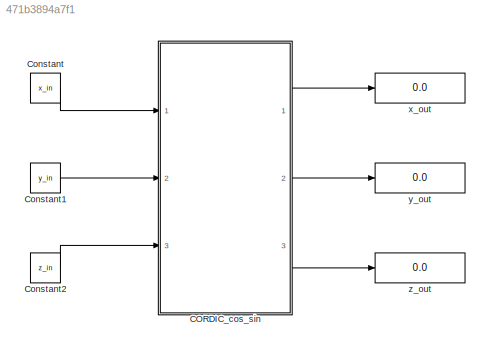
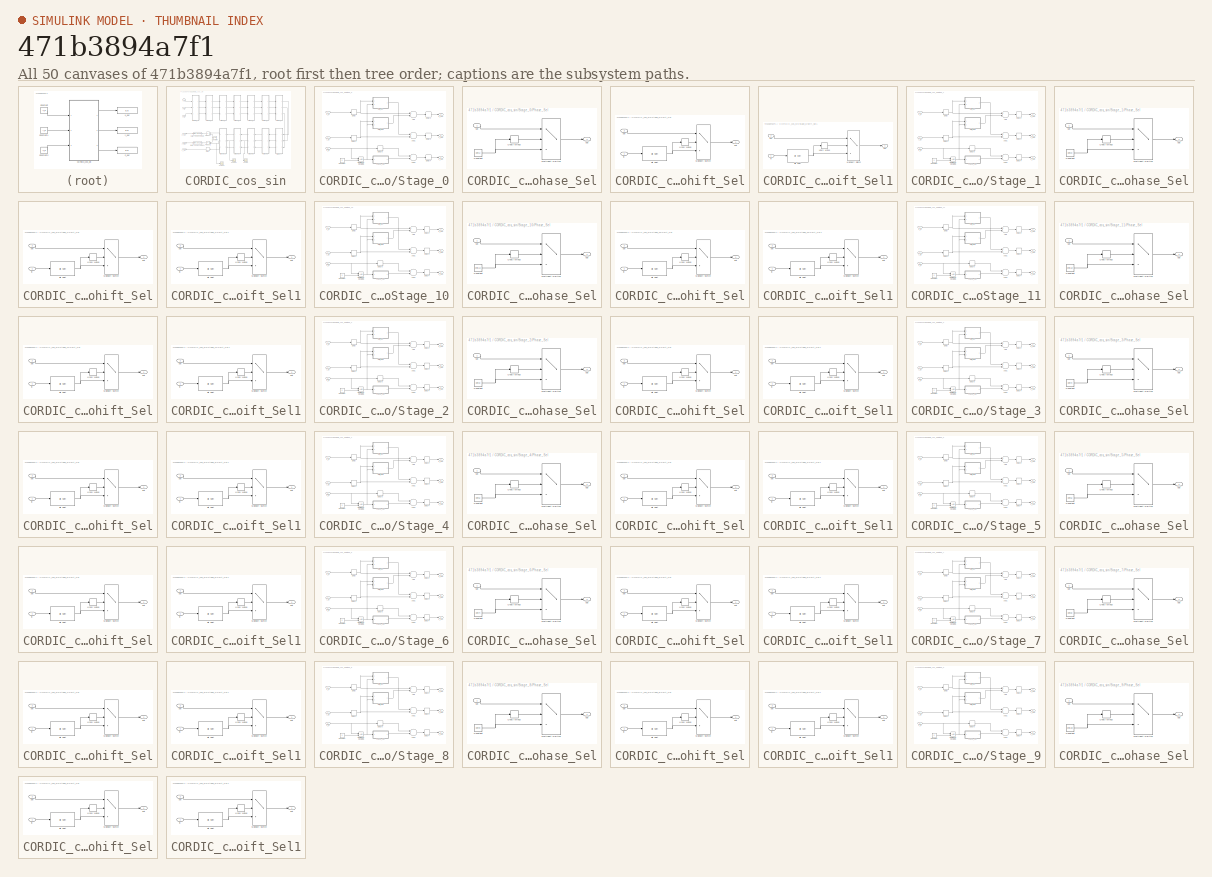
[diagram: thumbnail index - all 50 canvases of the model, root first then tree order]
MODEL slx_471b3894a7f1
KIND model
CONFIG AbsTol = auto
CONFIG EnableMultiTasking = off
CONFIG FixedStep = auto
CONFIG MaxStep = auto
CONFIG MinStep = auto
CONFIG RelTol = 1e-3
CONFIG SampleTimeConstraint = Unconstrained
CONFIG Solver = VariableStepAuto
CONFIG SolverName = VariableStepAuto
CONFIG StartTime = 0.0
CONFIG StopTime = 10.0
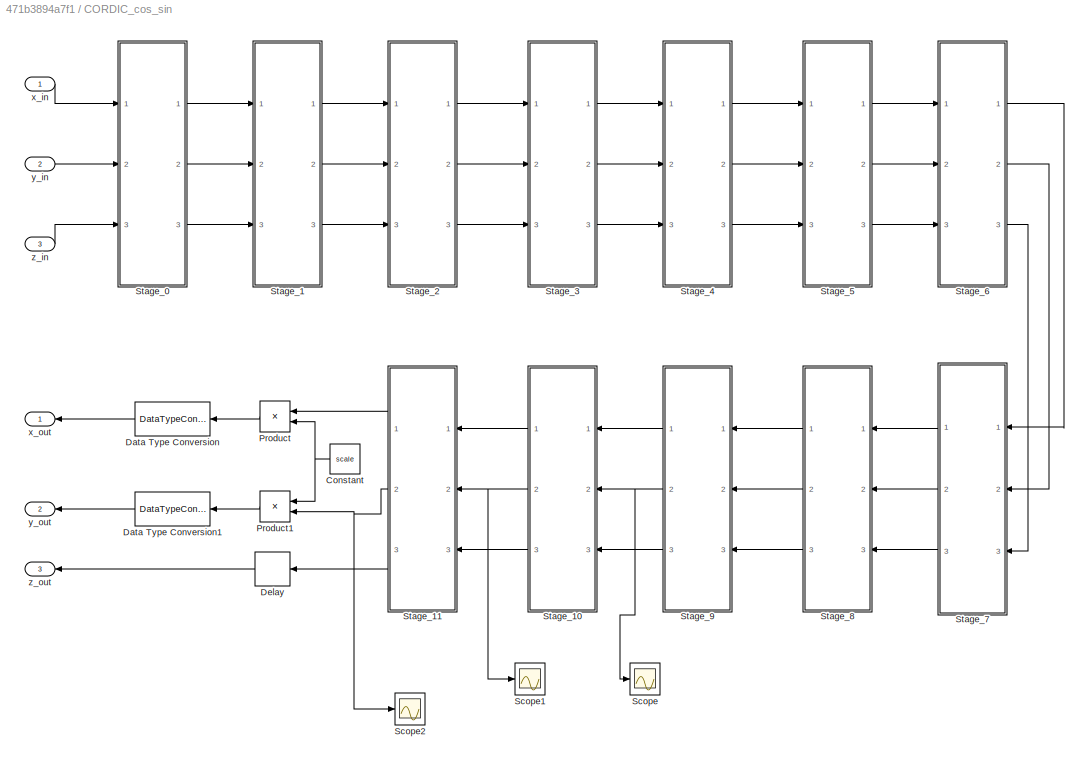
BLOCK [SubSystem] CORDIC_cos_sin
  Ports = [3, 3]
  RequestExecContextInheritance = off
  Variant = off
BLOCK [Constant] CORDIC_cos_sin/Constant
  OutDataTypeStr = fixdt(0,32,32)
  Value = scale
BLOCK [DataTypeConversion] CORDIC_cos_sin/Data Type Conversion
  OutDataTypeStr = fixdt(1,22,16)
  RndMeth = Floor
  SaturateOnIntegerOverflow = off
BLOCK [DataTypeConversion] CORDIC_cos_sin/Data Type Conversion1
  OutDataTypeStr = fixdt(1,22,16)
  RndMeth = Floor
  SaturateOnIntegerOverflow = off
BLOCK [Delay] CORDIC_cos_sin/Delay
  DelayLength = 1
  InputPortMap = u0
  Ports = [1, 1]
BLOCK [Product] CORDIC_cos_sin/Product
  InputSameDT = off
  OutDataTypeStr = Inherit: Inherit via internal rule
  Ports = [2, 1]
  RndMeth = Floor
  SaturateOnIntegerOverflow = off
BLOCK [Product] CORDIC_cos_sin/Product1
  InputSameDT = off
  OutDataTypeStr = Inherit: Inherit via internal rule
  Ports = [2, 1]
  RndMeth = Floor
  SaturateOnIntegerOverflow = off
BLOCK [Scope] CORDIC_cos_sin/Scope
  NumInputPorts = 1
  Ports = [1]
  ScopeSpecificationString = Simulink.scopes.TimeScopeBlockCfg('CurrentConfiguration', extmgr.ConfigurationSet(extmgr.Configuration('Core','General UI',true),extmgr.Configuration('Core','Source UI',true),extmgr.Configuration('Sources','WiredSimulink',true,'DataLoggingVariableName','ScopeData3'),extmgr.Configuration('Visuals','Time Domain',true,'SerializedDisplays',{struct('MinYLimReal','-1.60558','MaxYLimReal','0.1784','YLabe...<+1366ch>
BLOCK [Scope] CORDIC_cos_sin/Scope1
  NumInputPorts = 1
  Ports = [1]
  ScopeSpecificationString = Simulink.scopes.TimeScopeBlockCfg('CurrentConfiguration', extmgr.ConfigurationSet(extmgr.Configuration('Core','General UI',true),extmgr.Configuration('Core','Source UI',true),extmgr.Configuration('Sources','WiredSimulink',true,'DataLoggingVariableName','ScopeData4'),extmgr.Configuration('Visuals','Time Domain',true,'SerializedDisplays',{struct('MinYLimReal','-1.60469','MaxYLimReal','0.1783','YLabe...<+1367ch>
BLOCK [Scope] CORDIC_cos_sin/Scope2
  NumInputPorts = 1
  Ports = [1]
  ScopeSpecificationString = Simulink.scopes.TimeScopeBlockCfg('CurrentConfiguration', extmgr.ConfigurationSet(extmgr.Configuration('Core','General UI',true),extmgr.Configuration('Core','Source UI',true),extmgr.Configuration('Sources','WiredSimulink',true,'DataLoggingVariableName','ScopeData5'),extmgr.Configuration('Visuals','Time Domain',true,'SerializedDisplays',{struct('MinYLimReal','-1.60428','MaxYLimReal','0.17825','YLab...<+1369ch>
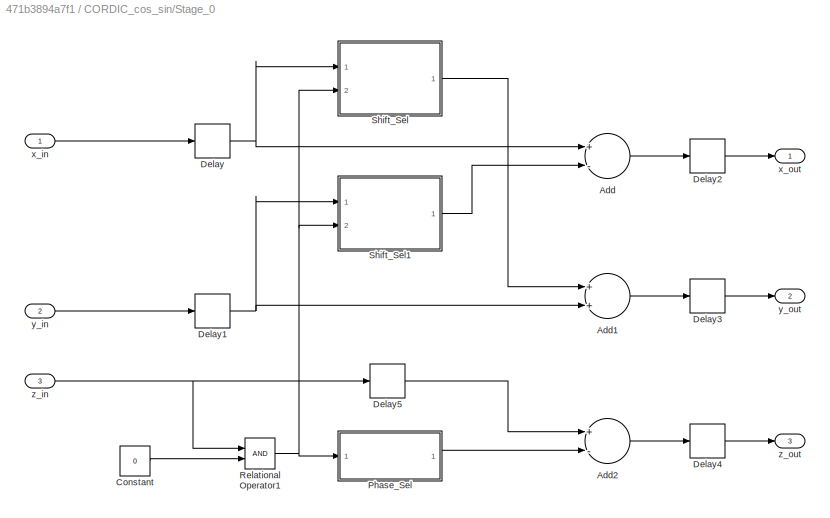
BLOCK [SubSystem] CORDIC_cos_sin/Stage_0
  Ports = [3, 3]
  RequestExecContextInheritance = off
  Variant = off
BLOCK [Sum] CORDIC_cos_sin/Stage_0/Add
  InputSameDT = off
  Inputs = +-
  OutDataTypeStr = Inherit: Inherit via internal rule
  Ports = [2, 1]
  SaturateOnIntegerOverflow = off
BLOCK [Sum] CORDIC_cos_sin/Stage_0/Add1
  InputSameDT = off
  OutDataTypeStr = Inherit: Inherit via internal rule
  Ports = [2, 1]
  SaturateOnIntegerOverflow = off
BLOCK [Sum] CORDIC_cos_sin/Stage_0/Add2
  InputSameDT = off
  Inputs = +-
  OutDataTypeStr = Inherit: Inherit via internal rule
  Ports = [2, 1]
  SaturateOnIntegerOverflow = off
BLOCK [Constant] CORDIC_cos_sin/Stage_0/Constant
  OutDataTypeStr = fixdt(0,1,0)
  Value = 0
BLOCK [Delay] CORDIC_cos_sin/Stage_0/Delay
  DelayLength = 1
  InputPortMap = u0
  Ports = [1, 1]
BLOCK [Delay] CORDIC_cos_sin/Stage_0/Delay1
  DelayLength = 1
  InputPortMap = u0
  Ports = [1, 1]
BLOCK [Delay] CORDIC_cos_sin/Stage_0/Delay2
  DelayLength = 1
  InputPortMap = u0
  Ports = [1, 1]
BLOCK [Delay] CORDIC_cos_sin/Stage_0/Delay3
  DelayLength = 1
  InputPortMap = u0
  Ports = [1, 1]
BLOCK [Delay] CORDIC_cos_sin/Stage_0/Delay4
  DelayLength = 1
  InputPortMap = u0
  Ports = [1, 1]
BLOCK [Delay] CORDIC_cos_sin/Stage_0/Delay5
  DelayLength = 1
  InputPortMap = u0
  Ports = [1, 1]
BLOCK [SubSystem] CORDIC_cos_sin/Stage_0/Phase_Sel
  Ports = [1, 1]
  RequestExecContextInheritance = off
  Variant = off
BLOCK [Constant] CORDIC_cos_sin/Stage_0/Phase_Sel/Constant
  OutDataTypeStr = fixdt(1,16,15)
  Value = pht(1)
BLOCK [MultiPortSwitch] CORDIC_cos_sin/Stage_0/Phase_Sel/Multiport Switch
  DataPortOrder = Zero-based contiguous
  InputSameDT = off
  Inputs = 2
  Ports = [3, 1]
  SaturateOnIntegerOverflow = off
BLOCK [UnaryMinus] CORDIC_cos_sin/Stage_0/Phase_Sel/Unary Minus
BLOCK [Outport] CORDIC_cos_sin/Stage_0/Phase_Sel/out
  IconDisplay = Port number
BLOCK [Inport] CORDIC_cos_sin/Stage_0/Phase_Sel/sel
  IconDisplay = Port number
BLOCK [RelationalOperator] CORDIC_cos_sin/Stage_0/Relational Operator1
  InputSameDT = off
  OutDataTypeStr = boolean
  Ports = [2, 1]
BLOCK [SubSystem] CORDIC_cos_sin/Stage_0/Shift_Sel
  Ports = [2, 1]
  RequestExecContextInheritance = off
  Variant = off
BLOCK [Reference] CORDIC_cos_sin/Stage_0/Shift_Sel/Bit Shift  REF=hdlsllib/HDL Operations/Bit Shift
  Ports = [1, 1]
  SourceBlock = hdlsllib/HDL Operations/Bit Shift
  SourceType = Bit Shift
BLOCK [MultiPortSwitch] CORDIC_cos_sin/Stage_0/Shift_Sel/Multiport Switch
  DataPortOrder = Zero-based contiguous
  InputSameDT = off
  Inputs = 2
  Ports = [3, 1]
  SaturateOnIntegerOverflow = off
BLOCK [UnaryMinus] CORDIC_cos_sin/Stage_0/Shift_Sel/Unary Minus
BLOCK [Inport] CORDIC_cos_sin/Stage_0/Shift_Sel/in
  IconDisplay = Port number
BLOCK [Outport] CORDIC_cos_sin/Stage_0/Shift_Sel/out
  IconDisplay = Port number
BLOCK [Inport] CORDIC_cos_sin/Stage_0/Shift_Sel/sel
  IconDisplay = Port number
  Port = 2
BLOCK [SubSystem] CORDIC_cos_sin/Stage_0/Shift_Sel1
  Ports = [2, 1]
  RequestExecContextInheritance = off
  Variant = off
BLOCK [Reference] CORDIC_cos_sin/Stage_0/Shift_Sel1/Bit Shift  REF=hdlsllib/HDL Operations/Bit Shift
  Ports = [1, 1]
  SourceBlock = hdlsllib/HDL Operations/Bit Shift
  SourceType = Bit Shift
BLOCK [MultiPortSwitch] CORDIC_cos_sin/Stage_0/Shift_Sel1/Multiport Switch
  DataPortOrder = Zero-based contiguous
  InputSameDT = off
  Inputs = 2
  Ports = [3, 1]
  SaturateOnIntegerOverflow = off
BLOCK [UnaryMinus] CORDIC_cos_sin/Stage_0/Shift_Sel1/Unary Minus
BLOCK [Inport] CORDIC_cos_sin/Stage_0/Shift_Sel1/in
  IconDisplay = Port number
BLOCK [Outport] CORDIC_cos_sin/Stage_0/Shift_Sel1/out
  IconDisplay = Port number
BLOCK [Inport] CORDIC_cos_sin/Stage_0/Shift_Sel1/sel
  IconDisplay = Port number
  Port = 2
BLOCK [Inport] CORDIC_cos_sin/Stage_0/x_in
  IconDisplay = Port number
BLOCK [Outport] CORDIC_cos_sin/Stage_0/x_out
  IconDisplay = Port number
BLOCK [Inport] CORDIC_cos_sin/Stage_0/y_in
  IconDisplay = Port number
  Port = 2
BLOCK [Outport] CORDIC_cos_sin/Stage_0/y_out
  IconDisplay = Port number
  Port = 2
BLOCK [Inport] CORDIC_cos_sin/Stage_0/z_in
  IconDisplay = Port number
  Port = 3
BLOCK [Outport] CORDIC_cos_sin/Stage_0/z_out
  IconDisplay = Port number
  Port = 3
BLOCK [SubSystem] CORDIC_cos_sin/Stage_1
  Ports = [3, 3]
  RequestExecContextInheritance = off
  Variant = off
BLOCK [Sum] CORDIC_cos_sin/Stage_1/Add
  InputSameDT = off
  Inputs = +-
  OutDataTypeStr = Inherit: Inherit via internal rule
  Ports = [2, 1]
  SaturateOnIntegerOverflow = off
BLOCK [Sum] CORDIC_cos_sin/Stage_1/Add1
  InputSameDT = off
  OutDataTypeStr = Inherit: Inherit via internal rule
  Ports = [2, 1]
  SaturateOnIntegerOverflow = off
BLOCK [Sum] CORDIC_cos_sin/Stage_1/Add2
  InputSameDT = off
  Inputs = +-
  OutDataTypeStr = Inherit: Inherit via internal rule
  Ports = [2, 1]
  SaturateOnIntegerOverflow = off
BLOCK [Constant] CORDIC_cos_sin/Stage_1/Constant
  OutDataTypeStr = fixdt(0,1,0)
  Value = 0
BLOCK [Delay] CORDIC_cos_sin/Stage_1/Delay
  DelayLength = 1
  InputPortMap = u0
  Ports = [1, 1]
BLOCK [Delay] CORDIC_cos_sin/Stage_1/Delay1
  DelayLength = 1
  InputPortMap = u0
  Ports = [1, 1]
BLOCK [Delay] CORDIC_cos_sin/Stage_1/Delay2
  DelayLength = 1
  InputPortMap = u0
  Ports = [1, 1]
BLOCK [Delay] CORDIC_cos_sin/Stage_1/Delay3
  DelayLength = 1
  InputPortMap = u0
  Ports = [1, 1]
BLOCK [Delay] CORDIC_cos_sin/Stage_1/Delay4
  DelayLength = 1
  InputPortMap = u0
  Ports = [1, 1]
BLOCK [Delay] CORDIC_cos_sin/Stage_1/Delay5
  DelayLength = 1
  InputPortMap = u0
  Ports = [1, 1]
BLOCK [SubSystem] CORDIC_cos_sin/Stage_1/Phase_Sel
  Ports = [1, 1]
  RequestExecContextInheritance = off
  Variant = off
BLOCK [Constant] CORDIC_cos_sin/Stage_1/Phase_Sel/Constant
  OutDataTypeStr = fixdt(1,16,15)
  Value = pht(2)
BLOCK [MultiPortSwitch] CORDIC_cos_sin/Stage_1/Phase_Sel/Multiport Switch
  DataPortOrder = Zero-based contiguous
  InputSameDT = off
  Inputs = 2
  Ports = [3, 1]
  SaturateOnIntegerOverflow = off
BLOCK [UnaryMinus] CORDIC_cos_sin/Stage_1/Phase_Sel/Unary Minus
BLOCK [Outport] CORDIC_cos_sin/Stage_1/Phase_Sel/out
  IconDisplay = Port number
BLOCK [Inport] CORDIC_cos_sin/Stage_1/Phase_Sel/sel
  IconDisplay = Port number
BLOCK [RelationalOperator] CORDIC_cos_sin/Stage_1/Relational Operator1
  InputSameDT = off
  OutDataTypeStr = boolean
  Ports = [2, 1]
BLOCK [SubSystem] CORDIC_cos_sin/Stage_1/Shift_Sel
  Ports = [2, 1]
  RequestExecContextInheritance = off
  Variant = off
BLOCK [Reference] CORDIC_cos_sin/Stage_1/Shift_Sel/Bit Shift  REF=hdlsllib/HDL Operations/Bit Shift
  Ports = [1, 1]
  SourceBlock = hdlsllib/HDL Operations/Bit Shift
  SourceType = Bit Shift
BLOCK [MultiPortSwitch] CORDIC_cos_sin/Stage_1/Shift_Sel/Multiport Switch
  DataPortOrder = Zero-based contiguous
  InputSameDT = off
  Inputs = 2
  Ports = [3, 1]
  SaturateOnIntegerOverflow = off
BLOCK [UnaryMinus] CORDIC_cos_sin/Stage_1/Shift_Sel/Unary Minus
BLOCK [Inport] CORDIC_cos_sin/Stage_1/Shift_Sel/in
  IconDisplay = Port number
BLOCK [Outport] CORDIC_cos_sin/Stage_1/Shift_Sel/out
  IconDisplay = Port number
BLOCK [Inport] CORDIC_cos_sin/Stage_1/Shift_Sel/sel
  IconDisplay = Port number
  Port = 2
BLOCK [SubSystem] CORDIC_cos_sin/Stage_1/Shift_Sel1
  Ports = [2, 1]
  RequestExecContextInheritance = off
  Variant = off
BLOCK [Reference] CORDIC_cos_sin/Stage_1/Shift_Sel1/Bit Shift  REF=hdlsllib/HDL Operations/Bit Shift
  Ports = [1, 1]
  SourceBlock = hdlsllib/HDL Operations/Bit Shift
  SourceType = Bit Shift
BLOCK [MultiPortSwitch] CORDIC_cos_sin/Stage_1/Shift_Sel1/Multiport Switch
  DataPortOrder = Zero-based contiguous
  InputSameDT = off
  Inputs = 2
  Ports = [3, 1]
  SaturateOnIntegerOverflow = off
BLOCK [UnaryMinus] CORDIC_cos_sin/Stage_1/Shift_Sel1/Unary Minus
BLOCK [Inport] CORDIC_cos_sin/Stage_1/Shift_Sel1/in
  IconDisplay = Port number
BLOCK [Outport] CORDIC_cos_sin/Stage_1/Shift_Sel1/out
  IconDisplay = Port number
BLOCK [Inport] CORDIC_cos_sin/Stage_1/Shift_Sel1/sel
  IconDisplay = Port number
  Port = 2
BLOCK [Inport] CORDIC_cos_sin/Stage_1/x_in
  IconDisplay = Port number
BLOCK [Outport] CORDIC_cos_sin/Stage_1/x_out
  IconDisplay = Port number
BLOCK [Inport] CORDIC_cos_sin/Stage_1/y_in
  IconDisplay = Port number
  Port = 2
BLOCK [Outport] CORDIC_cos_sin/Stage_1/y_out
  IconDisplay = Port number
  Port = 2
BLOCK [Inport] CORDIC_cos_sin/Stage_1/z_in
  IconDisplay = Port number
  Port = 3
BLOCK [Outport] CORDIC_cos_sin/Stage_1/z_out
  IconDisplay = Port number
  Port = 3
BLOCK [SubSystem] CORDIC_cos_sin/Stage_10
  Ports = [3, 3]
  RequestExecContextInheritance = off
  Variant = off
BLOCK [Sum] CORDIC_cos_sin/Stage_10/Add
  InputSameDT = off
  Inputs = +-
  OutDataTypeStr = Inherit: Inherit via internal rule
  Ports = [2, 1]
  SaturateOnIntegerOverflow = off
BLOCK [Sum] CORDIC_cos_sin/Stage_10/Add1
  InputSameDT = off
  OutDataTypeStr = Inherit: Inherit via internal rule
  Ports = [2, 1]
  SaturateOnIntegerOverflow = off
BLOCK [Sum] CORDIC_cos_sin/Stage_10/Add2
  InputSameDT = off
  Inputs = +-
  OutDataTypeStr = Inherit: Inherit via internal rule
  Ports = [2, 1]
  SaturateOnIntegerOverflow = off
BLOCK [Constant] CORDIC_cos_sin/Stage_10/Constant
  OutDataTypeStr = fixdt(0,1,0)
  Value = 0
BLOCK [Delay] CORDIC_cos_sin/Stage_10/Delay
  DelayLength = 1
  InputPortMap = u0
  Ports = [1, 1]
BLOCK [Delay] CORDIC_cos_sin/Stage_10/Delay1
  DelayLength = 1
  InputPortMap = u0
  Ports = [1, 1]
BLOCK [Delay] CORDIC_cos_sin/Stage_10/Delay2
  DelayLength = 1
  InputPortMap = u0
  Ports = [1, 1]
BLOCK [Delay] CORDIC_cos_sin/Stage_10/Delay3
  DelayLength = 1
  InputPortMap = u0
  Ports = [1, 1]
BLOCK [Delay] CORDIC_cos_sin/Stage_10/Delay4
  DelayLength = 1
  InputPortMap = u0
  Ports = [1, 1]
BLOCK [Delay] CORDIC_cos_sin/Stage_10/Delay5
  DelayLength = 1
  InputPortMap = u0
  Ports = [1, 1]
BLOCK [SubSystem] CORDIC_cos_sin/Stage_10/Phase_Sel
  Ports = [1, 1]
  RequestExecContextInheritance = off
  Variant = off
BLOCK [Constant] CORDIC_cos_sin/Stage_10/Phase_Sel/Constant
  OutDataTypeStr = fixdt(1,16,15)
  Value = pht(11)
BLOCK [MultiPortSwitch] CORDIC_cos_sin/Stage_10/Phase_Sel/Multiport Switch
  DataPortOrder = Zero-based contiguous
  InputSameDT = off
  Inputs = 2
  Ports = [3, 1]
  SaturateOnIntegerOverflow = off
BLOCK [UnaryMinus] CORDIC_cos_sin/Stage_10/Phase_Sel/Unary Minus
BLOCK [Outport] CORDIC_cos_sin/Stage_10/Phase_Sel/out
  IconDisplay = Port number
BLOCK [Inport] CORDIC_cos_sin/Stage_10/Phase_Sel/sel
  IconDisplay = Port number
BLOCK [RelationalOperator] CORDIC_cos_sin/Stage_10/Relational Operator1
  InputSameDT = off
  OutDataTypeStr = boolean
  Ports = [2, 1]
BLOCK [SubSystem] CORDIC_cos_sin/Stage_10/Shift_Sel
  Ports = [2, 1]
  RequestExecContextInheritance = off
  Variant = off
BLOCK [Reference] CORDIC_cos_sin/Stage_10/Shift_Sel/Bit Shift  REF=hdlsllib/HDL Operations/Bit Shift
  Ports = [1, 1]
  SourceBlock = hdlsllib/HDL Operations/Bit Shift
  SourceType = Bit Shift
BLOCK [MultiPortSwitch] CORDIC_cos_sin/Stage_10/Shift_Sel/Multiport Switch
  DataPortOrder = Zero-based contiguous
  InputSameDT = off
  Inputs = 2
  Ports = [3, 1]
  SaturateOnIntegerOverflow = off
BLOCK [UnaryMinus] CORDIC_cos_sin/Stage_10/Shift_Sel/Unary Minus
BLOCK [Inport] CORDIC_cos_sin/Stage_10/Shift_Sel/in
  IconDisplay = Port number
BLOCK [Outport] CORDIC_cos_sin/Stage_10/Shift_Sel/out
  IconDisplay = Port number
BLOCK [Inport] CORDIC_cos_sin/Stage_10/Shift_Sel/sel
  IconDisplay = Port number
  Port = 2
BLOCK [SubSystem] CORDIC_cos_sin/Stage_10/Shift_Sel1
  Ports = [2, 1]
  RequestExecContextInheritance = off
  Variant = off
BLOCK [Reference] CORDIC_cos_sin/Stage_10/Shift_Sel1/Bit Shift  REF=hdlsllib/HDL Operations/Bit Shift
  Ports = [1, 1]
  SourceBlock = hdlsllib/HDL Operations/Bit Shift
  SourceType = Bit Shift
BLOCK [MultiPortSwitch] CORDIC_cos_sin/Stage_10/Shift_Sel1/Multiport Switch
  DataPortOrder = Zero-based contiguous
  InputSameDT = off
  Inputs = 2
  Ports = [3, 1]
  SaturateOnIntegerOverflow = off
BLOCK [UnaryMinus] CORDIC_cos_sin/Stage_10/Shift_Sel1/Unary Minus
BLOCK [Inport] CORDIC_cos_sin/Stage_10/Shift_Sel1/in
  IconDisplay = Port number
BLOCK [Outport] CORDIC_cos_sin/Stage_10/Shift_Sel1/out
  IconDisplay = Port number
BLOCK [Inport] CORDIC_cos_sin/Stage_10/Shift_Sel1/sel
  IconDisplay = Port number
  Port = 2
BLOCK [Inport] CORDIC_cos_sin/Stage_10/x_in
  IconDisplay = Port number
BLOCK [Outport] CORDIC_cos_sin/Stage_10/x_out
  IconDisplay = Port number
BLOCK [Inport] CORDIC_cos_sin/Stage_10/y_in
  IconDisplay = Port number
  Port = 2
BLOCK [Outport] CORDIC_cos_sin/Stage_10/y_out
  IconDisplay = Port number
  Port = 2
BLOCK [Inport] CORDIC_cos_sin/Stage_10/z_in
  IconDisplay = Port number
  Port = 3
BLOCK [Outport] CORDIC_cos_sin/Stage_10/z_out
  IconDisplay = Port number
  Port = 3
BLOCK [SubSystem] CORDIC_cos_sin/Stage_11
  Ports = [3, 3]
  RequestExecContextInheritance = off
  Variant = off
BLOCK [Sum] CORDIC_cos_sin/Stage_11/Add
  InputSameDT = off
  Inputs = +-
  OutDataTypeStr = Inherit: Inherit via internal rule
  Ports = [2, 1]
  SaturateOnIntegerOverflow = off
BLOCK [Sum] CORDIC_cos_sin/Stage_11/Add1
  InputSameDT = off
  OutDataTypeStr = Inherit: Inherit via internal rule
  Ports = [2, 1]
  SaturateOnIntegerOverflow = off
BLOCK [Sum] CORDIC_cos_sin/Stage_11/Add2
  InputSameDT = off
  Inputs = +-
  OutDataTypeStr = Inherit: Inherit via internal rule
  Ports = [2, 1]
  SaturateOnIntegerOverflow = off
BLOCK [Constant] CORDIC_cos_sin/Stage_11/Constant
  OutDataTypeStr = fixdt(0,1,0)
  Value = 0
BLOCK [Delay] CORDIC_cos_sin/Stage_11/Delay
  DelayLength = 1
  InputPortMap = u0
  Ports = [1, 1]
BLOCK [Delay] CORDIC_cos_sin/Stage_11/Delay1
  DelayLength = 1
  InputPortMap = u0
  Ports = [1, 1]
BLOCK [Delay] CORDIC_cos_sin/Stage_11/Delay2
  DelayLength = 1
  InputPortMap = u0
  Ports = [1, 1]
BLOCK [Delay] CORDIC_cos_sin/Stage_11/Delay3
  DelayLength = 1
  InputPortMap = u0
  Ports = [1, 1]
BLOCK [Delay] CORDIC_cos_sin/Stage_11/Delay4
  DelayLength = 1
  InputPortMap = u0
  Ports = [1, 1]
BLOCK [Delay] CORDIC_cos_sin/Stage_11/Delay5
  DelayLength = 1
  InputPortMap = u0
  Ports = [1, 1]
BLOCK [SubSystem] CORDIC_cos_sin/Stage_11/Phase_Sel
  Ports = [1, 1]
  RequestExecContextInheritance = off
  Variant = off
BLOCK [Constant] CORDIC_cos_sin/Stage_11/Phase_Sel/Constant
  OutDataTypeStr = fixdt(1,16,15)
  Value = pht(12)
BLOCK [MultiPortSwitch] CORDIC_cos_sin/Stage_11/Phase_Sel/Multiport Switch
  DataPortOrder = Zero-based contiguous
  InputSameDT = off
  Inputs = 2
  Ports = [3, 1]
  SaturateOnIntegerOverflow = off
BLOCK [UnaryMinus] CORDIC_cos_sin/Stage_11/Phase_Sel/Unary Minus
BLOCK [Outport] CORDIC_cos_sin/Stage_11/Phase_Sel/out
  IconDisplay = Port number
BLOCK [Inport] CORDIC_cos_sin/Stage_11/Phase_Sel/sel
  IconDisplay = Port number
BLOCK [RelationalOperator] CORDIC_cos_sin/Stage_11/Relational Operator1
  InputSameDT = off
  OutDataTypeStr = boolean
  Ports = [2, 1]
BLOCK [SubSystem] CORDIC_cos_sin/Stage_11/Shift_Sel
  Ports = [2, 1]
  RequestExecContextInheritance = off
  Variant = off
BLOCK [Reference] CORDIC_cos_sin/Stage_11/Shift_Sel/Bit Shift  REF=hdlsllib/HDL Operations/Bit Shift
  Ports = [1, 1]
  SourceBlock = hdlsllib/HDL Operations/Bit Shift
  SourceType = Bit Shift
BLOCK [MultiPortSwitch] CORDIC_cos_sin/Stage_11/Shift_Sel/Multiport Switch
  DataPortOrder = Zero-based contiguous
  InputSameDT = off
  Inputs = 2
  Ports = [3, 1]
  SaturateOnIntegerOverflow = off
BLOCK [UnaryMinus] CORDIC_cos_sin/Stage_11/Shift_Sel/Unary Minus
BLOCK [Inport] CORDIC_cos_sin/Stage_11/Shift_Sel/in
  IconDisplay = Port number
BLOCK [Outport] CORDIC_cos_sin/Stage_11/Shift_Sel/out
  IconDisplay = Port number
BLOCK [Inport] CORDIC_cos_sin/Stage_11/Shift_Sel/sel
  IconDisplay = Port number
  Port = 2
BLOCK [SubSystem] CORDIC_cos_sin/Stage_11/Shift_Sel1
  Ports = [2, 1]
  RequestExecContextInheritance = off
  Variant = off
BLOCK [Reference] CORDIC_cos_sin/Stage_11/Shift_Sel1/Bit Shift  REF=hdlsllib/HDL Operations/Bit Shift
  Ports = [1, 1]
  SourceBlock = hdlsllib/HDL Operations/Bit Shift
  SourceType = Bit Shift
BLOCK [MultiPortSwitch] CORDIC_cos_sin/Stage_11/Shift_Sel1/Multiport Switch
  DataPortOrder = Zero-based contiguous
  InputSameDT = off
  Inputs = 2
  Ports = [3, 1]
  SaturateOnIntegerOverflow = off
BLOCK [UnaryMinus] CORDIC_cos_sin/Stage_11/Shift_Sel1/Unary Minus
BLOCK [Inport] CORDIC_cos_sin/Stage_11/Shift_Sel1/in
  IconDisplay = Port number
BLOCK [Outport] CORDIC_cos_sin/Stage_11/Shift_Sel1/out
  IconDisplay = Port number
BLOCK [Inport] CORDIC_cos_sin/Stage_11/Shift_Sel1/sel
  IconDisplay = Port number
  Port = 2
BLOCK [Inport] CORDIC_cos_sin/Stage_11/x_in
  IconDisplay = Port number
BLOCK [Outport] CORDIC_cos_sin/Stage_11/x_out
  IconDisplay = Port number
BLOCK [Inport] CORDIC_cos_sin/Stage_11/y_in
  IconDisplay = Port number
  Port = 2
BLOCK [Outport] CORDIC_cos_sin/Stage_11/y_out
  IconDisplay = Port number
  Port = 2
BLOCK [Inport] CORDIC_cos_sin/Stage_11/z_in
  IconDisplay = Port number
  Port = 3
BLOCK [Outport] CORDIC_cos_sin/Stage_11/z_out
  IconDisplay = Port number
  Port = 3
BLOCK [SubSystem] CORDIC_cos_sin/Stage_2
  Ports = [3, 3]
  RequestExecContextInheritance = off
  Variant = off
BLOCK [Sum] CORDIC_cos_sin/Stage_2/Add
  InputSameDT = off
  Inputs = +-
  OutDataTypeStr = Inherit: Inherit via internal rule
  Ports = [2, 1]
  SaturateOnIntegerOverflow = off
BLOCK [Sum] CORDIC_cos_sin/Stage_2/Add1
  InputSameDT = off
  OutDataTypeStr = Inherit: Inherit via internal rule
  Ports = [2, 1]
  SaturateOnIntegerOverflow = off
BLOCK [Sum] CORDIC_cos_sin/Stage_2/Add2
  InputSameDT = off
  Inputs = +-
  OutDataTypeStr = Inherit: Inherit via internal rule
  Ports = [2, 1]
  SaturateOnIntegerOverflow = off
BLOCK [Constant] CORDIC_cos_sin/Stage_2/Constant
  OutDataTypeStr = fixdt(0,1,0)
  Value = 0
BLOCK [Delay] CORDIC_cos_sin/Stage_2/Delay
  DelayLength = 1
  InputPortMap = u0
  Ports = [1, 1]
BLOCK [Delay] CORDIC_cos_sin/Stage_2/Delay1
  DelayLength = 1
  InputPortMap = u0
  Ports = [1, 1]
BLOCK [Delay] CORDIC_cos_sin/Stage_2/Delay2
  DelayLength = 1
  InputPortMap = u0
  Ports = [1, 1]
BLOCK [Delay] CORDIC_cos_sin/Stage_2/Delay3
  DelayLength = 1
  InputPortMap = u0
  Ports = [1, 1]
BLOCK [Delay] CORDIC_cos_sin/Stage_2/Delay4
  DelayLength = 1
  InputPortMap = u0
  Ports = [1, 1]
BLOCK [Delay] CORDIC_cos_sin/Stage_2/Delay5
  DelayLength = 1
  InputPortMap = u0
  Ports = [1, 1]
BLOCK [SubSystem] CORDIC_cos_sin/Stage_2/Phase_Sel
  Ports = [1, 1]
  RequestExecContextInheritance = off
  Variant = off
BLOCK [Constant] CORDIC_cos_sin/Stage_2/Phase_Sel/Constant
  OutDataTypeStr = fixdt(1,16,15)
  Value = pht(3)
BLOCK [MultiPortSwitch] CORDIC_cos_sin/Stage_2/Phase_Sel/Multiport Switch
  DataPortOrder = Zero-based contiguous
  InputSameDT = off
  Inputs = 2
  Ports = [3, 1]
  SaturateOnIntegerOverflow = off
BLOCK [UnaryMinus] CORDIC_cos_sin/Stage_2/Phase_Sel/Unary Minus
BLOCK [Outport] CORDIC_cos_sin/Stage_2/Phase_Sel/out
  IconDisplay = Port number
BLOCK [Inport] CORDIC_cos_sin/Stage_2/Phase_Sel/sel
  IconDisplay = Port number
BLOCK [RelationalOperator] CORDIC_cos_sin/Stage_2/Relational Operator1
  InputSameDT = off
  OutDataTypeStr = boolean
  Ports = [2, 1]
BLOCK [SubSystem] CORDIC_cos_sin/Stage_2/Shift_Sel
  Ports = [2, 1]
  RequestExecContextInheritance = off
  Variant = off
BLOCK [Reference] CORDIC_cos_sin/Stage_2/Shift_Sel/Bit Shift  REF=hdlsllib/HDL Operations/Bit Shift
  Ports = [1, 1]
  SourceBlock = hdlsllib/HDL Operations/Bit Shift
  SourceType = Bit Shift
BLOCK [MultiPortSwitch] CORDIC_cos_sin/Stage_2/Shift_Sel/Multiport Switch
  DataPortOrder = Zero-based contiguous
  InputSameDT = off
  Inputs = 2
  Ports = [3, 1]
  SaturateOnIntegerOverflow = off
BLOCK [UnaryMinus] CORDIC_cos_sin/Stage_2/Shift_Sel/Unary Minus
BLOCK [Inport] CORDIC_cos_sin/Stage_2/Shift_Sel/in
  IconDisplay = Port number
BLOCK [Outport] CORDIC_cos_sin/Stage_2/Shift_Sel/out
  IconDisplay = Port number
BLOCK [Inport] CORDIC_cos_sin/Stage_2/Shift_Sel/sel
  IconDisplay = Port number
  Port = 2
BLOCK [SubSystem] CORDIC_cos_sin/Stage_2/Shift_Sel1
  Ports = [2, 1]
  RequestExecContextInheritance = off
  Variant = off
BLOCK [Reference] CORDIC_cos_sin/Stage_2/Shift_Sel1/Bit Shift  REF=hdlsllib/HDL Operations/Bit Shift
  Ports = [1, 1]
  SourceBlock = hdlsllib/HDL Operations/Bit Shift
  SourceType = Bit Shift
BLOCK [MultiPortSwitch] CORDIC_cos_sin/Stage_2/Shift_Sel1/Multiport Switch
  DataPortOrder = Zero-based contiguous
  InputSameDT = off
  Inputs = 2
  Ports = [3, 1]
  SaturateOnIntegerOverflow = off
BLOCK [UnaryMinus] CORDIC_cos_sin/Stage_2/Shift_Sel1/Unary Minus
BLOCK [Inport] CORDIC_cos_sin/Stage_2/Shift_Sel1/in
  IconDisplay = Port number
BLOCK [Outport] CORDIC_cos_sin/Stage_2/Shift_Sel1/out
  IconDisplay = Port number
BLOCK [Inport] CORDIC_cos_sin/Stage_2/Shift_Sel1/sel
  IconDisplay = Port number
  Port = 2
BLOCK [Inport] CORDIC_cos_sin/Stage_2/x_in
  IconDisplay = Port number
BLOCK [Outport] CORDIC_cos_sin/Stage_2/x_out
  IconDisplay = Port number
BLOCK [Inport] CORDIC_cos_sin/Stage_2/y_in
  IconDisplay = Port number
  Port = 2
BLOCK [Outport] CORDIC_cos_sin/Stage_2/y_out
  IconDisplay = Port number
  Port = 2
BLOCK [Inport] CORDIC_cos_sin/Stage_2/z_in
  IconDisplay = Port number
  Port = 3
BLOCK [Outport] CORDIC_cos_sin/Stage_2/z_out
  IconDisplay = Port number
  Port = 3
BLOCK [SubSystem] CORDIC_cos_sin/Stage_3
  Ports = [3, 3]
  RequestExecContextInheritance = off
  Variant = off
BLOCK [Sum] CORDIC_cos_sin/Stage_3/Add
  InputSameDT = off
  Inputs = +-
  OutDataTypeStr = Inherit: Inherit via internal rule
  Ports = [2, 1]
  SaturateOnIntegerOverflow = off
BLOCK [Sum] CORDIC_cos_sin/Stage_3/Add1
  InputSameDT = off
  OutDataTypeStr = Inherit: Inherit via internal rule
  Ports = [2, 1]
  SaturateOnIntegerOverflow = off
BLOCK [Sum] CORDIC_cos_sin/Stage_3/Add2
  InputSameDT = off
  Inputs = +-
  OutDataTypeStr = Inherit: Inherit via internal rule
  Ports = [2, 1]
  SaturateOnIntegerOverflow = off
BLOCK [Constant] CORDIC_cos_sin/Stage_3/Constant
  OutDataTypeStr = fixdt(0,1,0)
  Value = 0
BLOCK [Delay] CORDIC_cos_sin/Stage_3/Delay
  DelayLength = 1
  InputPortMap = u0
  Ports = [1, 1]
BLOCK [Delay] CORDIC_cos_sin/Stage_3/Delay1
  DelayLength = 1
  InputPortMap = u0
  Ports = [1, 1]
BLOCK [Delay] CORDIC_cos_sin/Stage_3/Delay2
  DelayLength = 1
  InputPortMap = u0
  Ports = [1, 1]
BLOCK [Delay] CORDIC_cos_sin/Stage_3/Delay3
  DelayLength = 1
  InputPortMap = u0
  Ports = [1, 1]
BLOCK [Delay] CORDIC_cos_sin/Stage_3/Delay4
  DelayLength = 1
  InputPortMap = u0
  Ports = [1, 1]
BLOCK [Delay] CORDIC_cos_sin/Stage_3/Delay5
  DelayLength = 1
  InputPortMap = u0
  Ports = [1, 1]
BLOCK [SubSystem] CORDIC_cos_sin/Stage_3/Phase_Sel
  Ports = [1, 1]
  RequestExecContextInheritance = off
  Variant = off
BLOCK [Constant] CORDIC_cos_sin/Stage_3/Phase_Sel/Constant
  OutDataTypeStr = fixdt(1,16,15)
  Value = pht(4)
BLOCK [MultiPortSwitch] CORDIC_cos_sin/Stage_3/Phase_Sel/Multiport Switch
  DataPortOrder = Zero-based contiguous
  InputSameDT = off
  Inputs = 2
  Ports = [3, 1]
  SaturateOnIntegerOverflow = off
BLOCK [UnaryMinus] CORDIC_cos_sin/Stage_3/Phase_Sel/Unary Minus
BLOCK [Outport] CORDIC_cos_sin/Stage_3/Phase_Sel/out
  IconDisplay = Port number
BLOCK [Inport] CORDIC_cos_sin/Stage_3/Phase_Sel/sel
  IconDisplay = Port number
BLOCK [RelationalOperator] CORDIC_cos_sin/Stage_3/Relational Operator1
  InputSameDT = off
  OutDataTypeStr = boolean
  Ports = [2, 1]
BLOCK [SubSystem] CORDIC_cos_sin/Stage_3/Shift_Sel
  Ports = [2, 1]
  RequestExecContextInheritance = off
  Variant = off
BLOCK [Reference] CORDIC_cos_sin/Stage_3/Shift_Sel/Bit Shift  REF=hdlsllib/HDL Operations/Bit Shift
  Ports = [1, 1]
  SourceBlock = hdlsllib/HDL Operations/Bit Shift
  SourceType = Bit Shift
BLOCK [MultiPortSwitch] CORDIC_cos_sin/Stage_3/Shift_Sel/Multiport Switch
  DataPortOrder = Zero-based contiguous
  InputSameDT = off
  Inputs = 2
  Ports = [3, 1]
  SaturateOnIntegerOverflow = off
BLOCK [UnaryMinus] CORDIC_cos_sin/Stage_3/Shift_Sel/Unary Minus
BLOCK [Inport] CORDIC_cos_sin/Stage_3/Shift_Sel/in
  IconDisplay = Port number
BLOCK [Outport] CORDIC_cos_sin/Stage_3/Shift_Sel/out
  IconDisplay = Port number
BLOCK [Inport] CORDIC_cos_sin/Stage_3/Shift_Sel/sel
  IconDisplay = Port number
  Port = 2
BLOCK [SubSystem] CORDIC_cos_sin/Stage_3/Shift_Sel1
  Ports = [2, 1]
  RequestExecContextInheritance = off
  Variant = off
BLOCK [Reference] CORDIC_cos_sin/Stage_3/Shift_Sel1/Bit Shift  REF=hdlsllib/HDL Operations/Bit Shift
  Ports = [1, 1]
  SourceBlock = hdlsllib/HDL Operations/Bit Shift
  SourceType = Bit Shift
BLOCK [MultiPortSwitch] CORDIC_cos_sin/Stage_3/Shift_Sel1/Multiport Switch
  DataPortOrder = Zero-based contiguous
  InputSameDT = off
  Inputs = 2
  Ports = [3, 1]
  SaturateOnIntegerOverflow = off
BLOCK [UnaryMinus] CORDIC_cos_sin/Stage_3/Shift_Sel1/Unary Minus
BLOCK [Inport] CORDIC_cos_sin/Stage_3/Shift_Sel1/in
  IconDisplay = Port number
BLOCK [Outport] CORDIC_cos_sin/Stage_3/Shift_Sel1/out
  IconDisplay = Port number
BLOCK [Inport] CORDIC_cos_sin/Stage_3/Shift_Sel1/sel
  IconDisplay = Port number
  Port = 2
BLOCK [Inport] CORDIC_cos_sin/Stage_3/x_in
  IconDisplay = Port number
BLOCK [Outport] CORDIC_cos_sin/Stage_3/x_out
  IconDisplay = Port number
BLOCK [Inport] CORDIC_cos_sin/Stage_3/y_in
  IconDisplay = Port number
  Port = 2
BLOCK [Outport] CORDIC_cos_sin/Stage_3/y_out
  IconDisplay = Port number
  Port = 2
BLOCK [Inport] CORDIC_cos_sin/Stage_3/z_in
  IconDisplay = Port number
  Port = 3
BLOCK [Outport] CORDIC_cos_sin/Stage_3/z_out
  IconDisplay = Port number
  Port = 3
BLOCK [SubSystem] CORDIC_cos_sin/Stage_4
  Ports = [3, 3]
  RequestExecContextInheritance = off
  Variant = off
BLOCK [Sum] CORDIC_cos_sin/Stage_4/Add
  InputSameDT = off
  Inputs = +-
  OutDataTypeStr = Inherit: Inherit via internal rule
  Ports = [2, 1]
  SaturateOnIntegerOverflow = off
BLOCK [Sum] CORDIC_cos_sin/Stage_4/Add1
  InputSameDT = off
  OutDataTypeStr = Inherit: Inherit via internal rule
  Ports = [2, 1]
  SaturateOnIntegerOverflow = off
BLOCK [Sum] CORDIC_cos_sin/Stage_4/Add2
  InputSameDT = off
  Inputs = +-
  OutDataTypeStr = Inherit: Inherit via internal rule
  Ports = [2, 1]
  SaturateOnIntegerOverflow = off
BLOCK [Constant] CORDIC_cos_sin/Stage_4/Constant
  OutDataTypeStr = fixdt(0,1,0)
  Value = 0
BLOCK [Delay] CORDIC_cos_sin/Stage_4/Delay
  DelayLength = 1
  InputPortMap = u0
  Ports = [1, 1]
BLOCK [Delay] CORDIC_cos_sin/Stage_4/Delay1
  DelayLength = 1
  InputPortMap = u0
  Ports = [1, 1]
BLOCK [Delay] CORDIC_cos_sin/Stage_4/Delay2
  DelayLength = 1
  InputPortMap = u0
  Ports = [1, 1]
BLOCK [Delay] CORDIC_cos_sin/Stage_4/Delay3
  DelayLength = 1
  InputPortMap = u0
  Ports = [1, 1]
BLOCK [Delay] CORDIC_cos_sin/Stage_4/Delay4
  DelayLength = 1
  InputPortMap = u0
  Ports = [1, 1]
BLOCK [Delay] CORDIC_cos_sin/Stage_4/Delay5
  DelayLength = 1
  InputPortMap = u0
  Ports = [1, 1]
BLOCK [SubSystem] CORDIC_cos_sin/Stage_4/Phase_Sel
  Ports = [1, 1]
  RequestExecContextInheritance = off
  Variant = off
BLOCK [Constant] CORDIC_cos_sin/Stage_4/Phase_Sel/Constant
  OutDataTypeStr = fixdt(1,16,15)
  Value = pht(5)
BLOCK [MultiPortSwitch] CORDIC_cos_sin/Stage_4/Phase_Sel/Multiport Switch
  DataPortOrder = Zero-based contiguous
  InputSameDT = off
  Inputs = 2
  Ports = [3, 1]
  SaturateOnIntegerOverflow = off
BLOCK [UnaryMinus] CORDIC_cos_sin/Stage_4/Phase_Sel/Unary Minus
BLOCK [Outport] CORDIC_cos_sin/Stage_4/Phase_Sel/out
  IconDisplay = Port number
BLOCK [Inport] CORDIC_cos_sin/Stage_4/Phase_Sel/sel
  IconDisplay = Port number
BLOCK [RelationalOperator] CORDIC_cos_sin/Stage_4/Relational Operator1
  InputSameDT = off
  OutDataTypeStr = boolean
  Ports = [2, 1]
BLOCK [SubSystem] CORDIC_cos_sin/Stage_4/Shift_Sel
  Ports = [2, 1]
  RequestExecContextInheritance = off
  Variant = off
BLOCK [Reference] CORDIC_cos_sin/Stage_4/Shift_Sel/Bit Shift  REF=hdlsllib/HDL Operations/Bit Shift
  Ports = [1, 1]
  SourceBlock = hdlsllib/HDL Operations/Bit Shift
  SourceType = Bit Shift
BLOCK [MultiPortSwitch] CORDIC_cos_sin/Stage_4/Shift_Sel/Multiport Switch
  DataPortOrder = Zero-based contiguous
  InputSameDT = off
  Inputs = 2
  Ports = [3, 1]
  SaturateOnIntegerOverflow = off
BLOCK [UnaryMinus] CORDIC_cos_sin/Stage_4/Shift_Sel/Unary Minus
BLOCK [Inport] CORDIC_cos_sin/Stage_4/Shift_Sel/in
  IconDisplay = Port number
BLOCK [Outport] CORDIC_cos_sin/Stage_4/Shift_Sel/out
  IconDisplay = Port number
BLOCK [Inport] CORDIC_cos_sin/Stage_4/Shift_Sel/sel
  IconDisplay = Port number
  Port = 2
BLOCK [SubSystem] CORDIC_cos_sin/Stage_4/Shift_Sel1
  Ports = [2, 1]
  RequestExecContextInheritance = off
  Variant = off
BLOCK [Reference] CORDIC_cos_sin/Stage_4/Shift_Sel1/Bit Shift  REF=hdlsllib/HDL Operations/Bit Shift
  Ports = [1, 1]
  SourceBlock = hdlsllib/HDL Operations/Bit Shift
  SourceType = Bit Shift
BLOCK [MultiPortSwitch] CORDIC_cos_sin/Stage_4/Shift_Sel1/Multiport Switch
  DataPortOrder = Zero-based contiguous
  InputSameDT = off
  Inputs = 2
  Ports = [3, 1]
  SaturateOnIntegerOverflow = off
BLOCK [UnaryMinus] CORDIC_cos_sin/Stage_4/Shift_Sel1/Unary Minus
BLOCK [Inport] CORDIC_cos_sin/Stage_4/Shift_Sel1/in
  IconDisplay = Port number
BLOCK [Outport] CORDIC_cos_sin/Stage_4/Shift_Sel1/out
  IconDisplay = Port number
BLOCK [Inport] CORDIC_cos_sin/Stage_4/Shift_Sel1/sel
  IconDisplay = Port number
  Port = 2
BLOCK [Inport] CORDIC_cos_sin/Stage_4/x_in
  IconDisplay = Port number
BLOCK [Outport] CORDIC_cos_sin/Stage_4/x_out
  IconDisplay = Port number
BLOCK [Inport] CORDIC_cos_sin/Stage_4/y_in
  IconDisplay = Port number
  Port = 2
BLOCK [Outport] CORDIC_cos_sin/Stage_4/y_out
  IconDisplay = Port number
  Port = 2
BLOCK [Inport] CORDIC_cos_sin/Stage_4/z_in
  IconDisplay = Port number
  Port = 3
BLOCK [Outport] CORDIC_cos_sin/Stage_4/z_out
  IconDisplay = Port number
  Port = 3
BLOCK [SubSystem] CORDIC_cos_sin/Stage_5
  Ports = [3, 3]
  RequestExecContextInheritance = off
  Variant = off
BLOCK [Sum] CORDIC_cos_sin/Stage_5/Add
  InputSameDT = off
  Inputs = +-
  OutDataTypeStr = Inherit: Inherit via internal rule
  Ports = [2, 1]
  SaturateOnIntegerOverflow = off
BLOCK [Sum] CORDIC_cos_sin/Stage_5/Add1
  InputSameDT = off
  OutDataTypeStr = Inherit: Inherit via internal rule
  Ports = [2, 1]
  SaturateOnIntegerOverflow = off
BLOCK [Sum] CORDIC_cos_sin/Stage_5/Add2
  InputSameDT = off
  Inputs = +-
  OutDataTypeStr = Inherit: Inherit via internal rule
  Ports = [2, 1]
  SaturateOnIntegerOverflow = off
BLOCK [Constant] CORDIC_cos_sin/Stage_5/Constant
  OutDataTypeStr = fixdt(0,1,0)
  Value = 0
BLOCK [Delay] CORDIC_cos_sin/Stage_5/Delay
  DelayLength = 1
  InputPortMap = u0
  Ports = [1, 1]
BLOCK [Delay] CORDIC_cos_sin/Stage_5/Delay1
  DelayLength = 1
  InputPortMap = u0
  Ports = [1, 1]
BLOCK [Delay] CORDIC_cos_sin/Stage_5/Delay2
  DelayLength = 1
  InputPortMap = u0
  Ports = [1, 1]
BLOCK [Delay] CORDIC_cos_sin/Stage_5/Delay3
  DelayLength = 1
  InputPortMap = u0
  Ports = [1, 1]
BLOCK [Delay] CORDIC_cos_sin/Stage_5/Delay4
  DelayLength = 1
  InputPortMap = u0
  Ports = [1, 1]
BLOCK [Delay] CORDIC_cos_sin/Stage_5/Delay5
  DelayLength = 1
  InputPortMap = u0
  Ports = [1, 1]
BLOCK [SubSystem] CORDIC_cos_sin/Stage_5/Phase_Sel
  Ports = [1, 1]
  RequestExecContextInheritance = off
  Variant = off
BLOCK [Constant] CORDIC_cos_sin/Stage_5/Phase_Sel/Constant
  OutDataTypeStr = fixdt(1,16,15)
  Value = pht(6)
BLOCK [MultiPortSwitch] CORDIC_cos_sin/Stage_5/Phase_Sel/Multiport Switch
  DataPortOrder = Zero-based contiguous
  InputSameDT = off
  Inputs = 2
  Ports = [3, 1]
  SaturateOnIntegerOverflow = off
BLOCK [UnaryMinus] CORDIC_cos_sin/Stage_5/Phase_Sel/Unary Minus
BLOCK [Outport] CORDIC_cos_sin/Stage_5/Phase_Sel/out
  IconDisplay = Port number
BLOCK [Inport] CORDIC_cos_sin/Stage_5/Phase_Sel/sel
  IconDisplay = Port number
BLOCK [RelationalOperator] CORDIC_cos_sin/Stage_5/Relational Operator1
  InputSameDT = off
  OutDataTypeStr = boolean
  Ports = [2, 1]
BLOCK [SubSystem] CORDIC_cos_sin/Stage_5/Shift_Sel
  Ports = [2, 1]
  RequestExecContextInheritance = off
  Variant = off
BLOCK [Reference] CORDIC_cos_sin/Stage_5/Shift_Sel/Bit Shift  REF=hdlsllib/HDL Operations/Bit Shift
  Ports = [1, 1]
  SourceBlock = hdlsllib/HDL Operations/Bit Shift
  SourceType = Bit Shift
BLOCK [MultiPortSwitch] CORDIC_cos_sin/Stage_5/Shift_Sel/Multiport Switch
  DataPortOrder = Zero-based contiguous
  InputSameDT = off
  Inputs = 2
  Ports = [3, 1]
  SaturateOnIntegerOverflow = off
BLOCK [UnaryMinus] CORDIC_cos_sin/Stage_5/Shift_Sel/Unary Minus
BLOCK [Inport] CORDIC_cos_sin/Stage_5/Shift_Sel/in
  IconDisplay = Port number
BLOCK [Outport] CORDIC_cos_sin/Stage_5/Shift_Sel/out
  IconDisplay = Port number
BLOCK [Inport] CORDIC_cos_sin/Stage_5/Shift_Sel/sel
  IconDisplay = Port number
  Port = 2
BLOCK [SubSystem] CORDIC_cos_sin/Stage_5/Shift_Sel1
  Ports = [2, 1]
  RequestExecContextInheritance = off
  Variant = off
BLOCK [Reference] CORDIC_cos_sin/Stage_5/Shift_Sel1/Bit Shift  REF=hdlsllib/HDL Operations/Bit Shift
  Ports = [1, 1]
  SourceBlock = hdlsllib/HDL Operations/Bit Shift
  SourceType = Bit Shift
BLOCK [MultiPortSwitch] CORDIC_cos_sin/Stage_5/Shift_Sel1/Multiport Switch
  DataPortOrder = Zero-based contiguous
  InputSameDT = off
  Inputs = 2
  Ports = [3, 1]
  SaturateOnIntegerOverflow = off
BLOCK [UnaryMinus] CORDIC_cos_sin/Stage_5/Shift_Sel1/Unary Minus
BLOCK [Inport] CORDIC_cos_sin/Stage_5/Shift_Sel1/in
  IconDisplay = Port number
BLOCK [Outport] CORDIC_cos_sin/Stage_5/Shift_Sel1/out
  IconDisplay = Port number
BLOCK [Inport] CORDIC_cos_sin/Stage_5/Shift_Sel1/sel
  IconDisplay = Port number
  Port = 2
BLOCK [Inport] CORDIC_cos_sin/Stage_5/x_in
  IconDisplay = Port number
BLOCK [Outport] CORDIC_cos_sin/Stage_5/x_out
  IconDisplay = Port number
BLOCK [Inport] CORDIC_cos_sin/Stage_5/y_in
  IconDisplay = Port number
  Port = 2
BLOCK [Outport] CORDIC_cos_sin/Stage_5/y_out
  IconDisplay = Port number
  Port = 2
BLOCK [Inport] CORDIC_cos_sin/Stage_5/z_in
  IconDisplay = Port number
  Port = 3
BLOCK [Outport] CORDIC_cos_sin/Stage_5/z_out
  IconDisplay = Port number
  Port = 3
BLOCK [SubSystem] CORDIC_cos_sin/Stage_6
  Ports = [3, 3]
  RequestExecContextInheritance = off
  Variant = off
BLOCK [Sum] CORDIC_cos_sin/Stage_6/Add
  InputSameDT = off
  Inputs = +-
  OutDataTypeStr = Inherit: Inherit via internal rule
  Ports = [2, 1]
  SaturateOnIntegerOverflow = off
BLOCK [Sum] CORDIC_cos_sin/Stage_6/Add1
  InputSameDT = off
  OutDataTypeStr = Inherit: Inherit via internal rule
  Ports = [2, 1]
  SaturateOnIntegerOverflow = off
BLOCK [Sum] CORDIC_cos_sin/Stage_6/Add2
  InputSameDT = off
  Inputs = +-
  OutDataTypeStr = Inherit: Inherit via internal rule
  Ports = [2, 1]
  SaturateOnIntegerOverflow = off
BLOCK [Constant] CORDIC_cos_sin/Stage_6/Constant
  OutDataTypeStr = fixdt(0,1,0)
  Value = 0
BLOCK [Delay] CORDIC_cos_sin/Stage_6/Delay
  DelayLength = 1
  InputPortMap = u0
  Ports = [1, 1]
BLOCK [Delay] CORDIC_cos_sin/Stage_6/Delay1
  DelayLength = 1
  InputPortMap = u0
  Ports = [1, 1]
BLOCK [Delay] CORDIC_cos_sin/Stage_6/Delay2
  DelayLength = 1
  InputPortMap = u0
  Ports = [1, 1]
BLOCK [Delay] CORDIC_cos_sin/Stage_6/Delay3
  DelayLength = 1
  InputPortMap = u0
  Ports = [1, 1]
BLOCK [Delay] CORDIC_cos_sin/Stage_6/Delay4
  DelayLength = 1
  InputPortMap = u0
  Ports = [1, 1]
BLOCK [Delay] CORDIC_cos_sin/Stage_6/Delay5
  DelayLength = 1
  InputPortMap = u0
  Ports = [1, 1]
BLOCK [SubSystem] CORDIC_cos_sin/Stage_6/Phase_Sel
  Ports = [1, 1]
  RequestExecContextInheritance = off
  Variant = off
BLOCK [Constant] CORDIC_cos_sin/Stage_6/Phase_Sel/Constant
  OutDataTypeStr = fixdt(1,16,15)
  Value = pht(7)
BLOCK [MultiPortSwitch] CORDIC_cos_sin/Stage_6/Phase_Sel/Multiport Switch
  DataPortOrder = Zero-based contiguous
  InputSameDT = off
  Inputs = 2
  Ports = [3, 1]
  SaturateOnIntegerOverflow = off
BLOCK [UnaryMinus] CORDIC_cos_sin/Stage_6/Phase_Sel/Unary Minus
BLOCK [Outport] CORDIC_cos_sin/Stage_6/Phase_Sel/out
  IconDisplay = Port number
BLOCK [Inport] CORDIC_cos_sin/Stage_6/Phase_Sel/sel
  IconDisplay = Port number
BLOCK [RelationalOperator] CORDIC_cos_sin/Stage_6/Relational Operator1
  InputSameDT = off
  OutDataTypeStr = boolean
  Ports = [2, 1]
BLOCK [SubSystem] CORDIC_cos_sin/Stage_6/Shift_Sel
  Ports = [2, 1]
  RequestExecContextInheritance = off
  Variant = off
BLOCK [Reference] CORDIC_cos_sin/Stage_6/Shift_Sel/Bit Shift  REF=hdlsllib/HDL Operations/Bit Shift
  Ports = [1, 1]
  SourceBlock = hdlsllib/HDL Operations/Bit Shift
  SourceType = Bit Shift
BLOCK [MultiPortSwitch] CORDIC_cos_sin/Stage_6/Shift_Sel/Multiport Switch
  DataPortOrder = Zero-based contiguous
  InputSameDT = off
  Inputs = 2
  Ports = [3, 1]
  SaturateOnIntegerOverflow = off
BLOCK [UnaryMinus] CORDIC_cos_sin/Stage_6/Shift_Sel/Unary Minus
BLOCK [Inport] CORDIC_cos_sin/Stage_6/Shift_Sel/in
  IconDisplay = Port number
BLOCK [Outport] CORDIC_cos_sin/Stage_6/Shift_Sel/out
  IconDisplay = Port number
BLOCK [Inport] CORDIC_cos_sin/Stage_6/Shift_Sel/sel
  IconDisplay = Port number
  Port = 2
BLOCK [SubSystem] CORDIC_cos_sin/Stage_6/Shift_Sel1
  Ports = [2, 1]
  RequestExecContextInheritance = off
  Variant = off
BLOCK [Reference] CORDIC_cos_sin/Stage_6/Shift_Sel1/Bit Shift  REF=hdlsllib/HDL Operations/Bit Shift
  Ports = [1, 1]
  SourceBlock = hdlsllib/HDL Operations/Bit Shift
  SourceType = Bit Shift
BLOCK [MultiPortSwitch] CORDIC_cos_sin/Stage_6/Shift_Sel1/Multiport Switch
  DataPortOrder = Zero-based contiguous
  InputSameDT = off
  Inputs = 2
  Ports = [3, 1]
  SaturateOnIntegerOverflow = off
BLOCK [UnaryMinus] CORDIC_cos_sin/Stage_6/Shift_Sel1/Unary Minus
BLOCK [Inport] CORDIC_cos_sin/Stage_6/Shift_Sel1/in
  IconDisplay = Port number
BLOCK [Outport] CORDIC_cos_sin/Stage_6/Shift_Sel1/out
  IconDisplay = Port number
BLOCK [Inport] CORDIC_cos_sin/Stage_6/Shift_Sel1/sel
  IconDisplay = Port number
  Port = 2
BLOCK [Inport] CORDIC_cos_sin/Stage_6/x_in
  IconDisplay = Port number
BLOCK [Outport] CORDIC_cos_sin/Stage_6/x_out
  IconDisplay = Port number
BLOCK [Inport] CORDIC_cos_sin/Stage_6/y_in
  IconDisplay = Port number
  Port = 2
BLOCK [Outport] CORDIC_cos_sin/Stage_6/y_out
  IconDisplay = Port number
  Port = 2
BLOCK [Inport] CORDIC_cos_sin/Stage_6/z_in
  IconDisplay = Port number
  Port = 3
BLOCK [Outport] CORDIC_cos_sin/Stage_6/z_out
  IconDisplay = Port number
  Port = 3
BLOCK [SubSystem] CORDIC_cos_sin/Stage_7
  Ports = [3, 3]
  RequestExecContextInheritance = off
  Variant = off
BLOCK [Sum] CORDIC_cos_sin/Stage_7/Add
  InputSameDT = off
  Inputs = +-
  OutDataTypeStr = Inherit: Inherit via internal rule
  Ports = [2, 1]
  SaturateOnIntegerOverflow = off
BLOCK [Sum] CORDIC_cos_sin/Stage_7/Add1
  InputSameDT = off
  OutDataTypeStr = Inherit: Inherit via internal rule
  Ports = [2, 1]
  SaturateOnIntegerOverflow = off
BLOCK [Sum] CORDIC_cos_sin/Stage_7/Add2
  InputSameDT = off
  Inputs = +-
  OutDataTypeStr = Inherit: Inherit via internal rule
  Ports = [2, 1]
  SaturateOnIntegerOverflow = off
BLOCK [Constant] CORDIC_cos_sin/Stage_7/Constant
  OutDataTypeStr = fixdt(0,1,0)
  Value = 0
BLOCK [Delay] CORDIC_cos_sin/Stage_7/Delay
  DelayLength = 1
  InputPortMap = u0
  Ports = [1, 1]
BLOCK [Delay] CORDIC_cos_sin/Stage_7/Delay1
  DelayLength = 1
  InputPortMap = u0
  Ports = [1, 1]
BLOCK [Delay] CORDIC_cos_sin/Stage_7/Delay2
  DelayLength = 1
  InputPortMap = u0
  Ports = [1, 1]
BLOCK [Delay] CORDIC_cos_sin/Stage_7/Delay3
  DelayLength = 1
  InputPortMap = u0
  Ports = [1, 1]
BLOCK [Delay] CORDIC_cos_sin/Stage_7/Delay4
  DelayLength = 1
  InputPortMap = u0
  Ports = [1, 1]
BLOCK [Delay] CORDIC_cos_sin/Stage_7/Delay5
  DelayLength = 1
  InputPortMap = u0
  Ports = [1, 1]
BLOCK [SubSystem] CORDIC_cos_sin/Stage_7/Phase_Sel
  Ports = [1, 1]
  RequestExecContextInheritance = off
  Variant = off
BLOCK [Constant] CORDIC_cos_sin/Stage_7/Phase_Sel/Constant
  OutDataTypeStr = fixdt(1,16,15)
  Value = pht(8)
BLOCK [MultiPortSwitch] CORDIC_cos_sin/Stage_7/Phase_Sel/Multiport Switch
  DataPortOrder = Zero-based contiguous
  InputSameDT = off
  Inputs = 2
  Ports = [3, 1]
  SaturateOnIntegerOverflow = off
BLOCK [UnaryMinus] CORDIC_cos_sin/Stage_7/Phase_Sel/Unary Minus
BLOCK [Outport] CORDIC_cos_sin/Stage_7/Phase_Sel/out
  IconDisplay = Port number
BLOCK [Inport] CORDIC_cos_sin/Stage_7/Phase_Sel/sel
  IconDisplay = Port number
BLOCK [RelationalOperator] CORDIC_cos_sin/Stage_7/Relational Operator1
  InputSameDT = off
  OutDataTypeStr = boolean
  Ports = [2, 1]
BLOCK [SubSystem] CORDIC_cos_sin/Stage_7/Shift_Sel
  Ports = [2, 1]
  RequestExecContextInheritance = off
  Variant = off
BLOCK [Reference] CORDIC_cos_sin/Stage_7/Shift_Sel/Bit Shift  REF=hdlsllib/HDL Operations/Bit Shift
  Ports = [1, 1]
  SourceBlock = hdlsllib/HDL Operations/Bit Shift
  SourceType = Bit Shift
BLOCK [MultiPortSwitch] CORDIC_cos_sin/Stage_7/Shift_Sel/Multiport Switch
  DataPortOrder = Zero-based contiguous
  InputSameDT = off
  Inputs = 2
  Ports = [3, 1]
  SaturateOnIntegerOverflow = off
BLOCK [UnaryMinus] CORDIC_cos_sin/Stage_7/Shift_Sel/Unary Minus
BLOCK [Inport] CORDIC_cos_sin/Stage_7/Shift_Sel/in
  IconDisplay = Port number
BLOCK [Outport] CORDIC_cos_sin/Stage_7/Shift_Sel/out
  IconDisplay = Port number
BLOCK [Inport] CORDIC_cos_sin/Stage_7/Shift_Sel/sel
  IconDisplay = Port number
  Port = 2
BLOCK [SubSystem] CORDIC_cos_sin/Stage_7/Shift_Sel1
  Ports = [2, 1]
  RequestExecContextInheritance = off
  Variant = off
BLOCK [Reference] CORDIC_cos_sin/Stage_7/Shift_Sel1/Bit Shift  REF=hdlsllib/HDL Operations/Bit Shift
  Ports = [1, 1]
  SourceBlock = hdlsllib/HDL Operations/Bit Shift
  SourceType = Bit Shift
BLOCK [MultiPortSwitch] CORDIC_cos_sin/Stage_7/Shift_Sel1/Multiport Switch
  DataPortOrder = Zero-based contiguous
  InputSameDT = off
  Inputs = 2
  Ports = [3, 1]
  SaturateOnIntegerOverflow = off
BLOCK [UnaryMinus] CORDIC_cos_sin/Stage_7/Shift_Sel1/Unary Minus
BLOCK [Inport] CORDIC_cos_sin/Stage_7/Shift_Sel1/in
  IconDisplay = Port number
BLOCK [Outport] CORDIC_cos_sin/Stage_7/Shift_Sel1/out
  IconDisplay = Port number
BLOCK [Inport] CORDIC_cos_sin/Stage_7/Shift_Sel1/sel
  IconDisplay = Port number
  Port = 2
BLOCK [Inport] CORDIC_cos_sin/Stage_7/x_in
  IconDisplay = Port number
BLOCK [Outport] CORDIC_cos_sin/Stage_7/x_out
  IconDisplay = Port number
BLOCK [Inport] CORDIC_cos_sin/Stage_7/y_in
  IconDisplay = Port number
  Port = 2
BLOCK [Outport] CORDIC_cos_sin/Stage_7/y_out
  IconDisplay = Port number
  Port = 2
BLOCK [Inport] CORDIC_cos_sin/Stage_7/z_in
  IconDisplay = Port number
  Port = 3
BLOCK [Outport] CORDIC_cos_sin/Stage_7/z_out
  IconDisplay = Port number
  Port = 3
BLOCK [SubSystem] CORDIC_cos_sin/Stage_8
  Ports = [3, 3]
  RequestExecContextInheritance = off
  Variant = off
BLOCK [Sum] CORDIC_cos_sin/Stage_8/Add
  InputSameDT = off
  Inputs = +-
  OutDataTypeStr = Inherit: Inherit via internal rule
  Ports = [2, 1]
  SaturateOnIntegerOverflow = off
BLOCK [Sum] CORDIC_cos_sin/Stage_8/Add1
  InputSameDT = off
  OutDataTypeStr = Inherit: Inherit via internal rule
  Ports = [2, 1]
  SaturateOnIntegerOverflow = off
BLOCK [Sum] CORDIC_cos_sin/Stage_8/Add2
  InputSameDT = off
  Inputs = +-
  OutDataTypeStr = Inherit: Inherit via internal rule
  Ports = [2, 1]
  SaturateOnIntegerOverflow = off
BLOCK [Constant] CORDIC_cos_sin/Stage_8/Constant
  OutDataTypeStr = fixdt(0,1,0)
  Value = 0
BLOCK [Delay] CORDIC_cos_sin/Stage_8/Delay
  DelayLength = 1
  InputPortMap = u0
  Ports = [1, 1]
BLOCK [Delay] CORDIC_cos_sin/Stage_8/Delay1
  DelayLength = 1
  InputPortMap = u0
  Ports = [1, 1]
BLOCK [Delay] CORDIC_cos_sin/Stage_8/Delay2
  DelayLength = 1
  InputPortMap = u0
  Ports = [1, 1]
BLOCK [Delay] CORDIC_cos_sin/Stage_8/Delay3
  DelayLength = 1
  InputPortMap = u0
  Ports = [1, 1]
BLOCK [Delay] CORDIC_cos_sin/Stage_8/Delay4
  DelayLength = 1
  InputPortMap = u0
  Ports = [1, 1]
BLOCK [Delay] CORDIC_cos_sin/Stage_8/Delay5
  DelayLength = 1
  InputPortMap = u0
  Ports = [1, 1]
BLOCK [SubSystem] CORDIC_cos_sin/Stage_8/Phase_Sel
  Ports = [1, 1]
  RequestExecContextInheritance = off
  Variant = off
BLOCK [Constant] CORDIC_cos_sin/Stage_8/Phase_Sel/Constant
  OutDataTypeStr = fixdt(1,16,15)
  Value = pht(9)
BLOCK [MultiPortSwitch] CORDIC_cos_sin/Stage_8/Phase_Sel/Multiport Switch
  DataPortOrder = Zero-based contiguous
  InputSameDT = off
  Inputs = 2
  Ports = [3, 1]
  SaturateOnIntegerOverflow = off
BLOCK [UnaryMinus] CORDIC_cos_sin/Stage_8/Phase_Sel/Unary Minus
BLOCK [Outport] CORDIC_cos_sin/Stage_8/Phase_Sel/out
  IconDisplay = Port number
BLOCK [Inport] CORDIC_cos_sin/Stage_8/Phase_Sel/sel
  IconDisplay = Port number
BLOCK [RelationalOperator] CORDIC_cos_sin/Stage_8/Relational Operator1
  InputSameDT = off
  OutDataTypeStr = boolean
  Ports = [2, 1]
BLOCK [SubSystem] CORDIC_cos_sin/Stage_8/Shift_Sel
  Ports = [2, 1]
  RequestExecContextInheritance = off
  Variant = off
BLOCK [Reference] CORDIC_cos_sin/Stage_8/Shift_Sel/Bit Shift  REF=hdlsllib/HDL Operations/Bit Shift
  Ports = [1, 1]
  SourceBlock = hdlsllib/HDL Operations/Bit Shift
  SourceType = Bit Shift
BLOCK [MultiPortSwitch] CORDIC_cos_sin/Stage_8/Shift_Sel/Multiport Switch
  DataPortOrder = Zero-based contiguous
  InputSameDT = off
  Inputs = 2
  Ports = [3, 1]
  SaturateOnIntegerOverflow = off
BLOCK [UnaryMinus] CORDIC_cos_sin/Stage_8/Shift_Sel/Unary Minus
BLOCK [Inport] CORDIC_cos_sin/Stage_8/Shift_Sel/in
  IconDisplay = Port number
BLOCK [Outport] CORDIC_cos_sin/Stage_8/Shift_Sel/out
  IconDisplay = Port number
BLOCK [Inport] CORDIC_cos_sin/Stage_8/Shift_Sel/sel
  IconDisplay = Port number
  Port = 2
BLOCK [SubSystem] CORDIC_cos_sin/Stage_8/Shift_Sel1
  Ports = [2, 1]
  RequestExecContextInheritance = off
  Variant = off
BLOCK [Reference] CORDIC_cos_sin/Stage_8/Shift_Sel1/Bit Shift  REF=hdlsllib/HDL Operations/Bit Shift
  Ports = [1, 1]
  SourceBlock = hdlsllib/HDL Operations/Bit Shift
  SourceType = Bit Shift
BLOCK [MultiPortSwitch] CORDIC_cos_sin/Stage_8/Shift_Sel1/Multiport Switch
  DataPortOrder = Zero-based contiguous
  InputSameDT = off
  Inputs = 2
  Ports = [3, 1]
  SaturateOnIntegerOverflow = off
BLOCK [UnaryMinus] CORDIC_cos_sin/Stage_8/Shift_Sel1/Unary Minus
BLOCK [Inport] CORDIC_cos_sin/Stage_8/Shift_Sel1/in
  IconDisplay = Port number
BLOCK [Outport] CORDIC_cos_sin/Stage_8/Shift_Sel1/out
  IconDisplay = Port number
BLOCK [Inport] CORDIC_cos_sin/Stage_8/Shift_Sel1/sel
  IconDisplay = Port number
  Port = 2
BLOCK [Inport] CORDIC_cos_sin/Stage_8/x_in
  IconDisplay = Port number
BLOCK [Outport] CORDIC_cos_sin/Stage_8/x_out
  IconDisplay = Port number
BLOCK [Inport] CORDIC_cos_sin/Stage_8/y_in
  IconDisplay = Port number
  Port = 2
BLOCK [Outport] CORDIC_cos_sin/Stage_8/y_out
  IconDisplay = Port number
  Port = 2
BLOCK [Inport] CORDIC_cos_sin/Stage_8/z_in
  IconDisplay = Port number
  Port = 3
BLOCK [Outport] CORDIC_cos_sin/Stage_8/z_out
  IconDisplay = Port number
  Port = 3
BLOCK [SubSystem] CORDIC_cos_sin/Stage_9
  Ports = [3, 3]
  RequestExecContextInheritance = off
  Variant = off
BLOCK [Sum] CORDIC_cos_sin/Stage_9/Add
  InputSameDT = off
  Inputs = +-
  OutDataTypeStr = Inherit: Inherit via internal rule
  Ports = [2, 1]
  SaturateOnIntegerOverflow = off
BLOCK [Sum] CORDIC_cos_sin/Stage_9/Add1
  InputSameDT = off
  OutDataTypeStr = Inherit: Inherit via internal rule
  Ports = [2, 1]
  SaturateOnIntegerOverflow = off
BLOCK [Sum] CORDIC_cos_sin/Stage_9/Add2
  InputSameDT = off
  Inputs = +-
  OutDataTypeStr = Inherit: Inherit via internal rule
  Ports = [2, 1]
  SaturateOnIntegerOverflow = off
BLOCK [Constant] CORDIC_cos_sin/Stage_9/Constant
  OutDataTypeStr = fixdt(0,1,0)
  Value = 0
BLOCK [Delay] CORDIC_cos_sin/Stage_9/Delay
  DelayLength = 1
  InputPortMap = u0
  Ports = [1, 1]
BLOCK [Delay] CORDIC_cos_sin/Stage_9/Delay1
  DelayLength = 1
  InputPortMap = u0
  Ports = [1, 1]
BLOCK [Delay] CORDIC_cos_sin/Stage_9/Delay2
  DelayLength = 1
  InputPortMap = u0
  Ports = [1, 1]
BLOCK [Delay] CORDIC_cos_sin/Stage_9/Delay3
  DelayLength = 1
  InputPortMap = u0
  Ports = [1, 1]
BLOCK [Delay] CORDIC_cos_sin/Stage_9/Delay4
  DelayLength = 1
  InputPortMap = u0
  Ports = [1, 1]
BLOCK [Delay] CORDIC_cos_sin/Stage_9/Delay5
  DelayLength = 1
  InputPortMap = u0
  Ports = [1, 1]
BLOCK [SubSystem] CORDIC_cos_sin/Stage_9/Phase_Sel
  Ports = [1, 1]
  RequestExecContextInheritance = off
  Variant = off
BLOCK [Constant] CORDIC_cos_sin/Stage_9/Phase_Sel/Constant
  OutDataTypeStr = fixdt(1,16,15)
  Value = pht(10)
BLOCK [MultiPortSwitch] CORDIC_cos_sin/Stage_9/Phase_Sel/Multiport Switch
  DataPortOrder = Zero-based contiguous
  InputSameDT = off
  Inputs = 2
  Ports = [3, 1]
  SaturateOnIntegerOverflow = off
BLOCK [UnaryMinus] CORDIC_cos_sin/Stage_9/Phase_Sel/Unary Minus
BLOCK [Outport] CORDIC_cos_sin/Stage_9/Phase_Sel/out
  IconDisplay = Port number
BLOCK [Inport] CORDIC_cos_sin/Stage_9/Phase_Sel/sel
  IconDisplay = Port number
BLOCK [RelationalOperator] CORDIC_cos_sin/Stage_9/Relational Operator1
  InputSameDT = off
  OutDataTypeStr = boolean
  Ports = [2, 1]
BLOCK [SubSystem] CORDIC_cos_sin/Stage_9/Shift_Sel
  Ports = [2, 1]
  RequestExecContextInheritance = off
  Variant = off
BLOCK [Reference] CORDIC_cos_sin/Stage_9/Shift_Sel/Bit Shift  REF=hdlsllib/HDL Operations/Bit Shift
  Ports = [1, 1]
  SourceBlock = hdlsllib/HDL Operations/Bit Shift
  SourceType = Bit Shift
BLOCK [MultiPortSwitch] CORDIC_cos_sin/Stage_9/Shift_Sel/Multiport Switch
  DataPortOrder = Zero-based contiguous
  InputSameDT = off
  Inputs = 2
  Ports = [3, 1]
  SaturateOnIntegerOverflow = off
BLOCK [UnaryMinus] CORDIC_cos_sin/Stage_9/Shift_Sel/Unary Minus
BLOCK [Inport] CORDIC_cos_sin/Stage_9/Shift_Sel/in
  IconDisplay = Port number
BLOCK [Outport] CORDIC_cos_sin/Stage_9/Shift_Sel/out
  IconDisplay = Port number
BLOCK [Inport] CORDIC_cos_sin/Stage_9/Shift_Sel/sel
  IconDisplay = Port number
  Port = 2
BLOCK [SubSystem] CORDIC_cos_sin/Stage_9/Shift_Sel1
  Ports = [2, 1]
  RequestExecContextInheritance = off
  Variant = off
BLOCK [Reference] CORDIC_cos_sin/Stage_9/Shift_Sel1/Bit Shift  REF=hdlsllib/HDL Operations/Bit Shift
  Ports = [1, 1]
  SourceBlock = hdlsllib/HDL Operations/Bit Shift
  SourceType = Bit Shift
BLOCK [MultiPortSwitch] CORDIC_cos_sin/Stage_9/Shift_Sel1/Multiport Switch
  DataPortOrder = Zero-based contiguous
  InputSameDT = off
  Inputs = 2
  Ports = [3, 1]
  SaturateOnIntegerOverflow = off
BLOCK [UnaryMinus] CORDIC_cos_sin/Stage_9/Shift_Sel1/Unary Minus
BLOCK [Inport] CORDIC_cos_sin/Stage_9/Shift_Sel1/in
  IconDisplay = Port number
BLOCK [Outport] CORDIC_cos_sin/Stage_9/Shift_Sel1/out
  IconDisplay = Port number
BLOCK [Inport] CORDIC_cos_sin/Stage_9/Shift_Sel1/sel
  IconDisplay = Port number
  Port = 2
BLOCK [Inport] CORDIC_cos_sin/Stage_9/x_in
  IconDisplay = Port number
BLOCK [Outport] CORDIC_cos_sin/Stage_9/x_out
  IconDisplay = Port number
BLOCK [Inport] CORDIC_cos_sin/Stage_9/y_in
  IconDisplay = Port number
  Port = 2
BLOCK [Outport] CORDIC_cos_sin/Stage_9/y_out
  IconDisplay = Port number
  Port = 2
BLOCK [Inport] CORDIC_cos_sin/Stage_9/z_in
  IconDisplay = Port number
  Port = 3
BLOCK [Outport] CORDIC_cos_sin/Stage_9/z_out
  IconDisplay = Port number
  Port = 3
BLOCK [Inport] CORDIC_cos_sin/x_in
  IconDisplay = Port number
BLOCK [Outport] CORDIC_cos_sin/x_out
  IconDisplay = Port number
BLOCK [Inport] CORDIC_cos_sin/y_in
  IconDisplay = Port number
  Port = 2
BLOCK [Outport] CORDIC_cos_sin/y_out
  IconDisplay = Port number
  Port = 2
BLOCK [Inport] CORDIC_cos_sin/z_in
  IconDisplay = Port number
  Port = 3
BLOCK [Outport] CORDIC_cos_sin/z_out
  IconDisplay = Port number
  Port = 3
BLOCK [Constant] Constant
  OutDataTypeStr = fixdt(1,17,14)
  Value = x_in
BLOCK [Constant] Constant1
  OutDataTypeStr = fixdt(1,17,14)
  Value = y_in
BLOCK [Constant] Constant2
  OutDataTypeStr = fixdt(1,17,14)
  Value = z_in
BLOCK [Display] x_out
  Decimation = 1
  Ports = [1]
BLOCK [Display] y_out
  Decimation = 1
  Ports = [1]
BLOCK [Display] z_out
  Decimation = 1
  Ports = [1]
NET CORDIC_cos_sin/Constant:1 -> CORDIC_cos_sin/Product1:1, CORDIC_cos_sin/Product:2
LINE CORDIC_cos_sin/Data Type Conversion1:1 -> CORDIC_cos_sin/y_out:1
LINE CORDIC_cos_sin/Data Type Conversion:1 -> CORDIC_cos_sin/x_out:1
LINE CORDIC_cos_sin/Delay:1 -> CORDIC_cos_sin/z_out:1
LINE CORDIC_cos_sin/Product1:1 -> CORDIC_cos_sin/Data Type Conversion1:1
LINE CORDIC_cos_sin/Product:1 -> CORDIC_cos_sin/Data Type Conversion:1
LINE CORDIC_cos_sin/Stage_0/Add1:1 -> CORDIC_cos_sin/Stage_0/Delay3:1
LINE CORDIC_cos_sin/Stage_0/Add2:1 -> CORDIC_cos_sin/Stage_0/Delay4:1
LINE CORDIC_cos_sin/Stage_0/Add:1 -> CORDIC_cos_sin/Stage_0/Delay2:1
LINE CORDIC_cos_sin/Stage_0/Constant:1 -> CORDIC_cos_sin/Stage_0/Relational Operator1:2
NET CORDIC_cos_sin/Stage_0/Delay1:1 -> CORDIC_cos_sin/Stage_0/Add1:2, CORDIC_cos_sin/Stage_0/Shift_Sel1:1
LINE CORDIC_cos_sin/Stage_0/Delay2:1 -> CORDIC_cos_sin/Stage_0/x_out:1
LINE CORDIC_cos_sin/Stage_0/Delay3:1 -> CORDIC_cos_sin/Stage_0/y_out:1
LINE CORDIC_cos_sin/Stage_0/Delay4:1 -> CORDIC_cos_sin/Stage_0/z_out:1
LINE CORDIC_cos_sin/Stage_0/Delay5:1 -> CORDIC_cos_sin/Stage_0/Add2:1
NET CORDIC_cos_sin/Stage_0/Delay:1 -> CORDIC_cos_sin/Stage_0/Add:1, CORDIC_cos_sin/Stage_0/Shift_Sel:1
NET CORDIC_cos_sin/Stage_0/Phase_Sel/Constant:1 -> CORDIC_cos_sin/Stage_0/Phase_Sel/Multiport Switch:3, CORDIC_cos_sin/Stage_0/Phase_Sel/Unary Minus:1
LINE CORDIC_cos_sin/Stage_0/Phase_Sel/Multiport Switch:1 -> CORDIC_cos_sin/Stage_0/Phase_Sel/out:1
LINE CORDIC_cos_sin/Stage_0/Phase_Sel/Unary Minus:1 -> CORDIC_cos_sin/Stage_0/Phase_Sel/Multiport Switch:2
LINE CORDIC_cos_sin/Stage_0/Phase_Sel/sel:1 -> CORDIC_cos_sin/Stage_0/Phase_Sel/Multiport Switch:1
LINE CORDIC_cos_sin/Stage_0/Phase_Sel:1 -> CORDIC_cos_sin/Stage_0/Add2:2
NET CORDIC_cos_sin/Stage_0/Relational Operator1:1 -> CORDIC_cos_sin/Stage_0/Phase_Sel:1, CORDIC_cos_sin/Stage_0/Shift_Sel1:2, CORDIC_cos_sin/Stage_0/Shift_Sel:2
NET CORDIC_cos_sin/Stage_0/Shift_Sel/Bit Shift:1 -> CORDIC_cos_sin/Stage_0/Shift_Sel/Multiport Switch:3, CORDIC_cos_sin/Stage_0/Shift_Sel/Unary Minus:1
LINE CORDIC_cos_sin/Stage_0/Shift_Sel/Multiport Switch:1 -> CORDIC_cos_sin/Stage_0/Shift_Sel/out:1
LINE CORDIC_cos_sin/Stage_0/Shift_Sel/Unary Minus:1 -> CORDIC_cos_sin/Stage_0/Shift_Sel/Multiport Switch:2
LINE CORDIC_cos_sin/Stage_0/Shift_Sel/in:1 -> CORDIC_cos_sin/Stage_0/Shift_Sel/Bit Shift:1
LINE CORDIC_cos_sin/Stage_0/Shift_Sel/sel:1 -> CORDIC_cos_sin/Stage_0/Shift_Sel/Multiport Switch:1
NET CORDIC_cos_sin/Stage_0/Shift_Sel1/Bit Shift:1 -> CORDIC_cos_sin/Stage_0/Shift_Sel1/Multiport Switch:3, CORDIC_cos_sin/Stage_0/Shift_Sel1/Unary Minus:1
LINE CORDIC_cos_sin/Stage_0/Shift_Sel1/Multiport Switch:1 -> CORDIC_cos_sin/Stage_0/Shift_Sel1/out:1
LINE CORDIC_cos_sin/Stage_0/Shift_Sel1/Unary Minus:1 -> CORDIC_cos_sin/Stage_0/Shift_Sel1/Multiport Switch:2
LINE CORDIC_cos_sin/Stage_0/Shift_Sel1/in:1 -> CORDIC_cos_sin/Stage_0/Shift_Sel1/Bit Shift:1
LINE CORDIC_cos_sin/Stage_0/Shift_Sel1/sel:1 -> CORDIC_cos_sin/Stage_0/Shift_Sel1/Multiport Switch:1
LINE CORDIC_cos_sin/Stage_0/Shift_Sel1:1 -> CORDIC_cos_sin/Stage_0/Add:2
LINE CORDIC_cos_sin/Stage_0/Shift_Sel:1 -> CORDIC_cos_sin/Stage_0/Add1:1
LINE CORDIC_cos_sin/Stage_0/x_in:1 -> CORDIC_cos_sin/Stage_0/Delay:1
LINE CORDIC_cos_sin/Stage_0/y_in:1 -> CORDIC_cos_sin/Stage_0/Delay1:1
NET CORDIC_cos_sin/Stage_0/z_in:1 -> CORDIC_cos_sin/Stage_0/Delay5:1, CORDIC_cos_sin/Stage_0/Relational Operator1:1
LINE CORDIC_cos_sin/Stage_0:1 -> CORDIC_cos_sin/Stage_1:1
LINE CORDIC_cos_sin/Stage_0:2 -> CORDIC_cos_sin/Stage_1:2
LINE CORDIC_cos_sin/Stage_0:3 -> CORDIC_cos_sin/Stage_1:3
LINE CORDIC_cos_sin/Stage_1/Add1:1 -> CORDIC_cos_sin/Stage_1/Delay3:1
LINE CORDIC_cos_sin/Stage_1/Add2:1 -> CORDIC_cos_sin/Stage_1/Delay4:1
LINE CORDIC_cos_sin/Stage_1/Add:1 -> CORDIC_cos_sin/Stage_1/Delay2:1
LINE CORDIC_cos_sin/Stage_1/Constant:1 -> CORDIC_cos_sin/Stage_1/Relational Operator1:2
NET CORDIC_cos_sin/Stage_1/Delay1:1 -> CORDIC_cos_sin/Stage_1/Add1:2, CORDIC_cos_sin/Stage_1/Shift_Sel1:1
LINE CORDIC_cos_sin/Stage_1/Delay2:1 -> CORDIC_cos_sin/Stage_1/x_out:1
LINE CORDIC_cos_sin/Stage_1/Delay3:1 -> CORDIC_cos_sin/Stage_1/y_out:1
LINE CORDIC_cos_sin/Stage_1/Delay4:1 -> CORDIC_cos_sin/Stage_1/z_out:1
LINE CORDIC_cos_sin/Stage_1/Delay5:1 -> CORDIC_cos_sin/Stage_1/Add2:1
NET CORDIC_cos_sin/Stage_1/Delay:1 -> CORDIC_cos_sin/Stage_1/Add:1, CORDIC_cos_sin/Stage_1/Shift_Sel:1
NET CORDIC_cos_sin/Stage_1/Phase_Sel/Constant:1 -> CORDIC_cos_sin/Stage_1/Phase_Sel/Multiport Switch:3, CORDIC_cos_sin/Stage_1/Phase_Sel/Unary Minus:1
LINE CORDIC_cos_sin/Stage_1/Phase_Sel/Multiport Switch:1 -> CORDIC_cos_sin/Stage_1/Phase_Sel/out:1
LINE CORDIC_cos_sin/Stage_1/Phase_Sel/Unary Minus:1 -> CORDIC_cos_sin/Stage_1/Phase_Sel/Multiport Switch:2
LINE CORDIC_cos_sin/Stage_1/Phase_Sel/sel:1 -> CORDIC_cos_sin/Stage_1/Phase_Sel/Multiport Switch:1
LINE CORDIC_cos_sin/Stage_1/Phase_Sel:1 -> CORDIC_cos_sin/Stage_1/Add2:2
NET CORDIC_cos_sin/Stage_1/Relational Operator1:1 -> CORDIC_cos_sin/Stage_1/Phase_Sel:1, CORDIC_cos_sin/Stage_1/Shift_Sel1:2, CORDIC_cos_sin/Stage_1/Shift_Sel:2
NET CORDIC_cos_sin/Stage_1/Shift_Sel/Bit Shift:1 -> CORDIC_cos_sin/Stage_1/Shift_Sel/Multiport Switch:3, CORDIC_cos_sin/Stage_1/Shift_Sel/Unary Minus:1
LINE CORDIC_cos_sin/Stage_1/Shift_Sel/Multiport Switch:1 -> CORDIC_cos_sin/Stage_1/Shift_Sel/out:1
LINE CORDIC_cos_sin/Stage_1/Shift_Sel/Unary Minus:1 -> CORDIC_cos_sin/Stage_1/Shift_Sel/Multiport Switch:2
LINE CORDIC_cos_sin/Stage_1/Shift_Sel/in:1 -> CORDIC_cos_sin/Stage_1/Shift_Sel/Bit Shift:1
LINE CORDIC_cos_sin/Stage_1/Shift_Sel/sel:1 -> CORDIC_cos_sin/Stage_1/Shift_Sel/Multiport Switch:1
NET CORDIC_cos_sin/Stage_1/Shift_Sel1/Bit Shift:1 -> CORDIC_cos_sin/Stage_1/Shift_Sel1/Multiport Switch:3, CORDIC_cos_sin/Stage_1/Shift_Sel1/Unary Minus:1
LINE CORDIC_cos_sin/Stage_1/Shift_Sel1/Multiport Switch:1 -> CORDIC_cos_sin/Stage_1/Shift_Sel1/out:1
LINE CORDIC_cos_sin/Stage_1/Shift_Sel1/Unary Minus:1 -> CORDIC_cos_sin/Stage_1/Shift_Sel1/Multiport Switch:2
LINE CORDIC_cos_sin/Stage_1/Shift_Sel1/in:1 -> CORDIC_cos_sin/Stage_1/Shift_Sel1/Bit Shift:1
LINE CORDIC_cos_sin/Stage_1/Shift_Sel1/sel:1 -> CORDIC_cos_sin/Stage_1/Shift_Sel1/Multiport Switch:1
LINE CORDIC_cos_sin/Stage_1/Shift_Sel1:1 -> CORDIC_cos_sin/Stage_1/Add:2
LINE CORDIC_cos_sin/Stage_1/Shift_Sel:1 -> CORDIC_cos_sin/Stage_1/Add1:1
LINE CORDIC_cos_sin/Stage_1/x_in:1 -> CORDIC_cos_sin/Stage_1/Delay:1
LINE CORDIC_cos_sin/Stage_1/y_in:1 -> CORDIC_cos_sin/Stage_1/Delay1:1
NET CORDIC_cos_sin/Stage_1/z_in:1 -> CORDIC_cos_sin/Stage_1/Delay5:1, CORDIC_cos_sin/Stage_1/Relational Operator1:1
LINE CORDIC_cos_sin/Stage_10/Add1:1 -> CORDIC_cos_sin/Stage_10/Delay3:1
LINE CORDIC_cos_sin/Stage_10/Add2:1 -> CORDIC_cos_sin/Stage_10/Delay4:1
LINE CORDIC_cos_sin/Stage_10/Add:1 -> CORDIC_cos_sin/Stage_10/Delay2:1
LINE CORDIC_cos_sin/Stage_10/Constant:1 -> CORDIC_cos_sin/Stage_10/Relational Operator1:2
NET CORDIC_cos_sin/Stage_10/Delay1:1 -> CORDIC_cos_sin/Stage_10/Add1:2, CORDIC_cos_sin/Stage_10/Shift_Sel1:1
LINE CORDIC_cos_sin/Stage_10/Delay2:1 -> CORDIC_cos_sin/Stage_10/x_out:1
LINE CORDIC_cos_sin/Stage_10/Delay3:1 -> CORDIC_cos_sin/Stage_10/y_out:1
LINE CORDIC_cos_sin/Stage_10/Delay4:1 -> CORDIC_cos_sin/Stage_10/z_out:1
LINE CORDIC_cos_sin/Stage_10/Delay5:1 -> CORDIC_cos_sin/Stage_10/Add2:1
NET CORDIC_cos_sin/Stage_10/Delay:1 -> CORDIC_cos_sin/Stage_10/Add:1, CORDIC_cos_sin/Stage_10/Shift_Sel:1
NET CORDIC_cos_sin/Stage_10/Phase_Sel/Constant:1 -> CORDIC_cos_sin/Stage_10/Phase_Sel/Multiport Switch:3, CORDIC_cos_sin/Stage_10/Phase_Sel/Unary Minus:1
LINE CORDIC_cos_sin/Stage_10/Phase_Sel/Multiport Switch:1 -> CORDIC_cos_sin/Stage_10/Phase_Sel/out:1
LINE CORDIC_cos_sin/Stage_10/Phase_Sel/Unary Minus:1 -> CORDIC_cos_sin/Stage_10/Phase_Sel/Multiport Switch:2
LINE CORDIC_cos_sin/Stage_10/Phase_Sel/sel:1 -> CORDIC_cos_sin/Stage_10/Phase_Sel/Multiport Switch:1
LINE CORDIC_cos_sin/Stage_10/Phase_Sel:1 -> CORDIC_cos_sin/Stage_10/Add2:2
NET CORDIC_cos_sin/Stage_10/Relational Operator1:1 -> CORDIC_cos_sin/Stage_10/Phase_Sel:1, CORDIC_cos_sin/Stage_10/Shift_Sel1:2, CORDIC_cos_sin/Stage_10/Shift_Sel:2
NET CORDIC_cos_sin/Stage_10/Shift_Sel/Bit Shift:1 -> CORDIC_cos_sin/Stage_10/Shift_Sel/Multiport Switch:3, CORDIC_cos_sin/Stage_10/Shift_Sel/Unary Minus:1
LINE CORDIC_cos_sin/Stage_10/Shift_Sel/Multiport Switch:1 -> CORDIC_cos_sin/Stage_10/Shift_Sel/out:1
LINE CORDIC_cos_sin/Stage_10/Shift_Sel/Unary Minus:1 -> CORDIC_cos_sin/Stage_10/Shift_Sel/Multiport Switch:2
LINE CORDIC_cos_sin/Stage_10/Shift_Sel/in:1 -> CORDIC_cos_sin/Stage_10/Shift_Sel/Bit Shift:1
LINE CORDIC_cos_sin/Stage_10/Shift_Sel/sel:1 -> CORDIC_cos_sin/Stage_10/Shift_Sel/Multiport Switch:1
NET CORDIC_cos_sin/Stage_10/Shift_Sel1/Bit Shift:1 -> CORDIC_cos_sin/Stage_10/Shift_Sel1/Multiport Switch:3, CORDIC_cos_sin/Stage_10/Shift_Sel1/Unary Minus:1
LINE CORDIC_cos_sin/Stage_10/Shift_Sel1/Multiport Switch:1 -> CORDIC_cos_sin/Stage_10/Shift_Sel1/out:1
LINE CORDIC_cos_sin/Stage_10/Shift_Sel1/Unary Minus:1 -> CORDIC_cos_sin/Stage_10/Shift_Sel1/Multiport Switch:2
LINE CORDIC_cos_sin/Stage_10/Shift_Sel1/in:1 -> CORDIC_cos_sin/Stage_10/Shift_Sel1/Bit Shift:1
LINE CORDIC_cos_sin/Stage_10/Shift_Sel1/sel:1 -> CORDIC_cos_sin/Stage_10/Shift_Sel1/Multiport Switch:1
LINE CORDIC_cos_sin/Stage_10/Shift_Sel1:1 -> CORDIC_cos_sin/Stage_10/Add:2
LINE CORDIC_cos_sin/Stage_10/Shift_Sel:1 -> CORDIC_cos_sin/Stage_10/Add1:1
LINE CORDIC_cos_sin/Stage_10/x_in:1 -> CORDIC_cos_sin/Stage_10/Delay:1
LINE CORDIC_cos_sin/Stage_10/y_in:1 -> CORDIC_cos_sin/Stage_10/Delay1:1
NET CORDIC_cos_sin/Stage_10/z_in:1 -> CORDIC_cos_sin/Stage_10/Delay5:1, CORDIC_cos_sin/Stage_10/Relational Operator1:1
LINE CORDIC_cos_sin/Stage_10:1 -> CORDIC_cos_sin/Stage_11:1
NET CORDIC_cos_sin/Stage_10:2 -> CORDIC_cos_sin/Scope1:1, CORDIC_cos_sin/Stage_11:2
LINE CORDIC_cos_sin/Stage_10:3 -> CORDIC_cos_sin/Stage_11:3
LINE CORDIC_cos_sin/Stage_11/Add1:1 -> CORDIC_cos_sin/Stage_11/Delay3:1
LINE CORDIC_cos_sin/Stage_11/Add2:1 -> CORDIC_cos_sin/Stage_11/Delay4:1
LINE CORDIC_cos_sin/Stage_11/Add:1 -> CORDIC_cos_sin/Stage_11/Delay2:1
LINE CORDIC_cos_sin/Stage_11/Constant:1 -> CORDIC_cos_sin/Stage_11/Relational Operator1:2
NET CORDIC_cos_sin/Stage_11/Delay1:1 -> CORDIC_cos_sin/Stage_11/Add1:2, CORDIC_cos_sin/Stage_11/Shift_Sel1:1
LINE CORDIC_cos_sin/Stage_11/Delay2:1 -> CORDIC_cos_sin/Stage_11/x_out:1
LINE CORDIC_cos_sin/Stage_11/Delay3:1 -> CORDIC_cos_sin/Stage_11/y_out:1
LINE CORDIC_cos_sin/Stage_11/Delay4:1 -> CORDIC_cos_sin/Stage_11/z_out:1
LINE CORDIC_cos_sin/Stage_11/Delay5:1 -> CORDIC_cos_sin/Stage_11/Add2:1
NET CORDIC_cos_sin/Stage_11/Delay:1 -> CORDIC_cos_sin/Stage_11/Add:1, CORDIC_cos_sin/Stage_11/Shift_Sel:1
NET CORDIC_cos_sin/Stage_11/Phase_Sel/Constant:1 -> CORDIC_cos_sin/Stage_11/Phase_Sel/Multiport Switch:3, CORDIC_cos_sin/Stage_11/Phase_Sel/Unary Minus:1
LINE CORDIC_cos_sin/Stage_11/Phase_Sel/Multiport Switch:1 -> CORDIC_cos_sin/Stage_11/Phase_Sel/out:1
LINE CORDIC_cos_sin/Stage_11/Phase_Sel/Unary Minus:1 -> CORDIC_cos_sin/Stage_11/Phase_Sel/Multiport Switch:2
LINE CORDIC_cos_sin/Stage_11/Phase_Sel/sel:1 -> CORDIC_cos_sin/Stage_11/Phase_Sel/Multiport Switch:1
LINE CORDIC_cos_sin/Stage_11/Phase_Sel:1 -> CORDIC_cos_sin/Stage_11/Add2:2
NET CORDIC_cos_sin/Stage_11/Relational Operator1:1 -> CORDIC_cos_sin/Stage_11/Phase_Sel:1, CORDIC_cos_sin/Stage_11/Shift_Sel1:2, CORDIC_cos_sin/Stage_11/Shift_Sel:2
NET CORDIC_cos_sin/Stage_11/Shift_Sel/Bit Shift:1 -> CORDIC_cos_sin/Stage_11/Shift_Sel/Multiport Switch:3, CORDIC_cos_sin/Stage_11/Shift_Sel/Unary Minus:1
LINE CORDIC_cos_sin/Stage_11/Shift_Sel/Multiport Switch:1 -> CORDIC_cos_sin/Stage_11/Shift_Sel/out:1
LINE CORDIC_cos_sin/Stage_11/Shift_Sel/Unary Minus:1 -> CORDIC_cos_sin/Stage_11/Shift_Sel/Multiport Switch:2
LINE CORDIC_cos_sin/Stage_11/Shift_Sel/in:1 -> CORDIC_cos_sin/Stage_11/Shift_Sel/Bit Shift:1
LINE CORDIC_cos_sin/Stage_11/Shift_Sel/sel:1 -> CORDIC_cos_sin/Stage_11/Shift_Sel/Multiport Switch:1
NET CORDIC_cos_sin/Stage_11/Shift_Sel1/Bit Shift:1 -> CORDIC_cos_sin/Stage_11/Shift_Sel1/Multiport Switch:3, CORDIC_cos_sin/Stage_11/Shift_Sel1/Unary Minus:1
LINE CORDIC_cos_sin/Stage_11/Shift_Sel1/Multiport Switch:1 -> CORDIC_cos_sin/Stage_11/Shift_Sel1/out:1
LINE CORDIC_cos_sin/Stage_11/Shift_Sel1/Unary Minus:1 -> CORDIC_cos_sin/Stage_11/Shift_Sel1/Multiport Switch:2
LINE CORDIC_cos_sin/Stage_11/Shift_Sel1/in:1 -> CORDIC_cos_sin/Stage_11/Shift_Sel1/Bit Shift:1
LINE CORDIC_cos_sin/Stage_11/Shift_Sel1/sel:1 -> CORDIC_cos_sin/Stage_11/Shift_Sel1/Multiport Switch:1
LINE CORDIC_cos_sin/Stage_11/Shift_Sel1:1 -> CORDIC_cos_sin/Stage_11/Add:2
LINE CORDIC_cos_sin/Stage_11/Shift_Sel:1 -> CORDIC_cos_sin/Stage_11/Add1:1
LINE CORDIC_cos_sin/Stage_11/x_in:1 -> CORDIC_cos_sin/Stage_11/Delay:1
LINE CORDIC_cos_sin/Stage_11/y_in:1 -> CORDIC_cos_sin/Stage_11/Delay1:1
NET CORDIC_cos_sin/Stage_11/z_in:1 -> CORDIC_cos_sin/Stage_11/Delay5:1, CORDIC_cos_sin/Stage_11/Relational Operator1:1
LINE CORDIC_cos_sin/Stage_11:1 -> CORDIC_cos_sin/Product:1
NET CORDIC_cos_sin/Stage_11:2 -> CORDIC_cos_sin/Product1:2, CORDIC_cos_sin/Scope2:1
LINE CORDIC_cos_sin/Stage_11:3 -> CORDIC_cos_sin/Delay:1
LINE CORDIC_cos_sin/Stage_1:1 -> CORDIC_cos_sin/Stage_2:1
LINE CORDIC_cos_sin/Stage_1:2 -> CORDIC_cos_sin/Stage_2:2
LINE CORDIC_cos_sin/Stage_1:3 -> CORDIC_cos_sin/Stage_2:3
LINE CORDIC_cos_sin/Stage_2/Add1:1 -> CORDIC_cos_sin/Stage_2/Delay3:1
LINE CORDIC_cos_sin/Stage_2/Add2:1 -> CORDIC_cos_sin/Stage_2/Delay4:1
LINE CORDIC_cos_sin/Stage_2/Add:1 -> CORDIC_cos_sin/Stage_2/Delay2:1
LINE CORDIC_cos_sin/Stage_2/Constant:1 -> CORDIC_cos_sin/Stage_2/Relational Operator1:2
NET CORDIC_cos_sin/Stage_2/Delay1:1 -> CORDIC_cos_sin/Stage_2/Add1:2, CORDIC_cos_sin/Stage_2/Shift_Sel1:1
LINE CORDIC_cos_sin/Stage_2/Delay2:1 -> CORDIC_cos_sin/Stage_2/x_out:1
LINE CORDIC_cos_sin/Stage_2/Delay3:1 -> CORDIC_cos_sin/Stage_2/y_out:1
LINE CORDIC_cos_sin/Stage_2/Delay4:1 -> CORDIC_cos_sin/Stage_2/z_out:1
LINE CORDIC_cos_sin/Stage_2/Delay5:1 -> CORDIC_cos_sin/Stage_2/Add2:1
NET CORDIC_cos_sin/Stage_2/Delay:1 -> CORDIC_cos_sin/Stage_2/Add:1, CORDIC_cos_sin/Stage_2/Shift_Sel:1
NET CORDIC_cos_sin/Stage_2/Phase_Sel/Constant:1 -> CORDIC_cos_sin/Stage_2/Phase_Sel/Multiport Switch:3, CORDIC_cos_sin/Stage_2/Phase_Sel/Unary Minus:1
LINE CORDIC_cos_sin/Stage_2/Phase_Sel/Multiport Switch:1 -> CORDIC_cos_sin/Stage_2/Phase_Sel/out:1
LINE CORDIC_cos_sin/Stage_2/Phase_Sel/Unary Minus:1 -> CORDIC_cos_sin/Stage_2/Phase_Sel/Multiport Switch:2
LINE CORDIC_cos_sin/Stage_2/Phase_Sel/sel:1 -> CORDIC_cos_sin/Stage_2/Phase_Sel/Multiport Switch:1
LINE CORDIC_cos_sin/Stage_2/Phase_Sel:1 -> CORDIC_cos_sin/Stage_2/Add2:2
NET CORDIC_cos_sin/Stage_2/Relational Operator1:1 -> CORDIC_cos_sin/Stage_2/Phase_Sel:1, CORDIC_cos_sin/Stage_2/Shift_Sel1:2, CORDIC_cos_sin/Stage_2/Shift_Sel:2
NET CORDIC_cos_sin/Stage_2/Shift_Sel/Bit Shift:1 -> CORDIC_cos_sin/Stage_2/Shift_Sel/Multiport Switch:3, CORDIC_cos_sin/Stage_2/Shift_Sel/Unary Minus:1
LINE CORDIC_cos_sin/Stage_2/Shift_Sel/Multiport Switch:1 -> CORDIC_cos_sin/Stage_2/Shift_Sel/out:1
LINE CORDIC_cos_sin/Stage_2/Shift_Sel/Unary Minus:1 -> CORDIC_cos_sin/Stage_2/Shift_Sel/Multiport Switch:2
LINE CORDIC_cos_sin/Stage_2/Shift_Sel/in:1 -> CORDIC_cos_sin/Stage_2/Shift_Sel/Bit Shift:1
LINE CORDIC_cos_sin/Stage_2/Shift_Sel/sel:1 -> CORDIC_cos_sin/Stage_2/Shift_Sel/Multiport Switch:1
NET CORDIC_cos_sin/Stage_2/Shift_Sel1/Bit Shift:1 -> CORDIC_cos_sin/Stage_2/Shift_Sel1/Multiport Switch:3, CORDIC_cos_sin/Stage_2/Shift_Sel1/Unary Minus:1
LINE CORDIC_cos_sin/Stage_2/Shift_Sel1/Multiport Switch:1 -> CORDIC_cos_sin/Stage_2/Shift_Sel1/out:1
LINE CORDIC_cos_sin/Stage_2/Shift_Sel1/Unary Minus:1 -> CORDIC_cos_sin/Stage_2/Shift_Sel1/Multiport Switch:2
LINE CORDIC_cos_sin/Stage_2/Shift_Sel1/in:1 -> CORDIC_cos_sin/Stage_2/Shift_Sel1/Bit Shift:1
LINE CORDIC_cos_sin/Stage_2/Shift_Sel1/sel:1 -> CORDIC_cos_sin/Stage_2/Shift_Sel1/Multiport Switch:1
LINE CORDIC_cos_sin/Stage_2/Shift_Sel1:1 -> CORDIC_cos_sin/Stage_2/Add:2
LINE CORDIC_cos_sin/Stage_2/Shift_Sel:1 -> CORDIC_cos_sin/Stage_2/Add1:1
LINE CORDIC_cos_sin/Stage_2/x_in:1 -> CORDIC_cos_sin/Stage_2/Delay:1
LINE CORDIC_cos_sin/Stage_2/y_in:1 -> CORDIC_cos_sin/Stage_2/Delay1:1
NET CORDIC_cos_sin/Stage_2/z_in:1 -> CORDIC_cos_sin/Stage_2/Delay5:1, CORDIC_cos_sin/Stage_2/Relational Operator1:1
LINE CORDIC_cos_sin/Stage_2:1 -> CORDIC_cos_sin/Stage_3:1
LINE CORDIC_cos_sin/Stage_2:2 -> CORDIC_cos_sin/Stage_3:2
LINE CORDIC_cos_sin/Stage_2:3 -> CORDIC_cos_sin/Stage_3:3
LINE CORDIC_cos_sin/Stage_3/Add1:1 -> CORDIC_cos_sin/Stage_3/Delay3:1
LINE CORDIC_cos_sin/Stage_3/Add2:1 -> CORDIC_cos_sin/Stage_3/Delay4:1
LINE CORDIC_cos_sin/Stage_3/Add:1 -> CORDIC_cos_sin/Stage_3/Delay2:1
LINE CORDIC_cos_sin/Stage_3/Constant:1 -> CORDIC_cos_sin/Stage_3/Relational Operator1:2
NET CORDIC_cos_sin/Stage_3/Delay1:1 -> CORDIC_cos_sin/Stage_3/Add1:2, CORDIC_cos_sin/Stage_3/Shift_Sel1:1
LINE CORDIC_cos_sin/Stage_3/Delay2:1 -> CORDIC_cos_sin/Stage_3/x_out:1
LINE CORDIC_cos_sin/Stage_3/Delay3:1 -> CORDIC_cos_sin/Stage_3/y_out:1
LINE CORDIC_cos_sin/Stage_3/Delay4:1 -> CORDIC_cos_sin/Stage_3/z_out:1
LINE CORDIC_cos_sin/Stage_3/Delay5:1 -> CORDIC_cos_sin/Stage_3/Add2:1
NET CORDIC_cos_sin/Stage_3/Delay:1 -> CORDIC_cos_sin/Stage_3/Add:1, CORDIC_cos_sin/Stage_3/Shift_Sel:1
NET CORDIC_cos_sin/Stage_3/Phase_Sel/Constant:1 -> CORDIC_cos_sin/Stage_3/Phase_Sel/Multiport Switch:3, CORDIC_cos_sin/Stage_3/Phase_Sel/Unary Minus:1
LINE CORDIC_cos_sin/Stage_3/Phase_Sel/Multiport Switch:1 -> CORDIC_cos_sin/Stage_3/Phase_Sel/out:1
LINE CORDIC_cos_sin/Stage_3/Phase_Sel/Unary Minus:1 -> CORDIC_cos_sin/Stage_3/Phase_Sel/Multiport Switch:2
LINE CORDIC_cos_sin/Stage_3/Phase_Sel/sel:1 -> CORDIC_cos_sin/Stage_3/Phase_Sel/Multiport Switch:1
LINE CORDIC_cos_sin/Stage_3/Phase_Sel:1 -> CORDIC_cos_sin/Stage_3/Add2:2
NET CORDIC_cos_sin/Stage_3/Relational Operator1:1 -> CORDIC_cos_sin/Stage_3/Phase_Sel:1, CORDIC_cos_sin/Stage_3/Shift_Sel1:2, CORDIC_cos_sin/Stage_3/Shift_Sel:2
NET CORDIC_cos_sin/Stage_3/Shift_Sel/Bit Shift:1 -> CORDIC_cos_sin/Stage_3/Shift_Sel/Multiport Switch:3, CORDIC_cos_sin/Stage_3/Shift_Sel/Unary Minus:1
LINE CORDIC_cos_sin/Stage_3/Shift_Sel/Multiport Switch:1 -> CORDIC_cos_sin/Stage_3/Shift_Sel/out:1
LINE CORDIC_cos_sin/Stage_3/Shift_Sel/Unary Minus:1 -> CORDIC_cos_sin/Stage_3/Shift_Sel/Multiport Switch:2
LINE CORDIC_cos_sin/Stage_3/Shift_Sel/in:1 -> CORDIC_cos_sin/Stage_3/Shift_Sel/Bit Shift:1
LINE CORDIC_cos_sin/Stage_3/Shift_Sel/sel:1 -> CORDIC_cos_sin/Stage_3/Shift_Sel/Multiport Switch:1
NET CORDIC_cos_sin/Stage_3/Shift_Sel1/Bit Shift:1 -> CORDIC_cos_sin/Stage_3/Shift_Sel1/Multiport Switch:3, CORDIC_cos_sin/Stage_3/Shift_Sel1/Unary Minus:1
LINE CORDIC_cos_sin/Stage_3/Shift_Sel1/Multiport Switch:1 -> CORDIC_cos_sin/Stage_3/Shift_Sel1/out:1
LINE CORDIC_cos_sin/Stage_3/Shift_Sel1/Unary Minus:1 -> CORDIC_cos_sin/Stage_3/Shift_Sel1/Multiport Switch:2
LINE CORDIC_cos_sin/Stage_3/Shift_Sel1/in:1 -> CORDIC_cos_sin/Stage_3/Shift_Sel1/Bit Shift:1
LINE CORDIC_cos_sin/Stage_3/Shift_Sel1/sel:1 -> CORDIC_cos_sin/Stage_3/Shift_Sel1/Multiport Switch:1
LINE CORDIC_cos_sin/Stage_3/Shift_Sel1:1 -> CORDIC_cos_sin/Stage_3/Add:2
LINE CORDIC_cos_sin/Stage_3/Shift_Sel:1 -> CORDIC_cos_sin/Stage_3/Add1:1
LINE CORDIC_cos_sin/Stage_3/x_in:1 -> CORDIC_cos_sin/Stage_3/Delay:1
LINE CORDIC_cos_sin/Stage_3/y_in:1 -> CORDIC_cos_sin/Stage_3/Delay1:1
NET CORDIC_cos_sin/Stage_3/z_in:1 -> CORDIC_cos_sin/Stage_3/Delay5:1, CORDIC_cos_sin/Stage_3/Relational Operator1:1
LINE CORDIC_cos_sin/Stage_3:1 -> CORDIC_cos_sin/Stage_4:1
LINE CORDIC_cos_sin/Stage_3:2 -> CORDIC_cos_sin/Stage_4:2
LINE CORDIC_cos_sin/Stage_3:3 -> CORDIC_cos_sin/Stage_4:3
LINE CORDIC_cos_sin/Stage_4/Add1:1 -> CORDIC_cos_sin/Stage_4/Delay3:1
LINE CORDIC_cos_sin/Stage_4/Add2:1 -> CORDIC_cos_sin/Stage_4/Delay4:1
LINE CORDIC_cos_sin/Stage_4/Add:1 -> CORDIC_cos_sin/Stage_4/Delay2:1
LINE CORDIC_cos_sin/Stage_4/Constant:1 -> CORDIC_cos_sin/Stage_4/Relational Operator1:2
NET CORDIC_cos_sin/Stage_4/Delay1:1 -> CORDIC_cos_sin/Stage_4/Add1:2, CORDIC_cos_sin/Stage_4/Shift_Sel1:1
LINE CORDIC_cos_sin/Stage_4/Delay2:1 -> CORDIC_cos_sin/Stage_4/x_out:1
LINE CORDIC_cos_sin/Stage_4/Delay3:1 -> CORDIC_cos_sin/Stage_4/y_out:1
LINE CORDIC_cos_sin/Stage_4/Delay4:1 -> CORDIC_cos_sin/Stage_4/z_out:1
LINE CORDIC_cos_sin/Stage_4/Delay5:1 -> CORDIC_cos_sin/Stage_4/Add2:1
NET CORDIC_cos_sin/Stage_4/Delay:1 -> CORDIC_cos_sin/Stage_4/Add:1, CORDIC_cos_sin/Stage_4/Shift_Sel:1
NET CORDIC_cos_sin/Stage_4/Phase_Sel/Constant:1 -> CORDIC_cos_sin/Stage_4/Phase_Sel/Multiport Switch:3, CORDIC_cos_sin/Stage_4/Phase_Sel/Unary Minus:1
LINE CORDIC_cos_sin/Stage_4/Phase_Sel/Multiport Switch:1 -> CORDIC_cos_sin/Stage_4/Phase_Sel/out:1
LINE CORDIC_cos_sin/Stage_4/Phase_Sel/Unary Minus:1 -> CORDIC_cos_sin/Stage_4/Phase_Sel/Multiport Switch:2
LINE CORDIC_cos_sin/Stage_4/Phase_Sel/sel:1 -> CORDIC_cos_sin/Stage_4/Phase_Sel/Multiport Switch:1
LINE CORDIC_cos_sin/Stage_4/Phase_Sel:1 -> CORDIC_cos_sin/Stage_4/Add2:2
NET CORDIC_cos_sin/Stage_4/Relational Operator1:1 -> CORDIC_cos_sin/Stage_4/Phase_Sel:1, CORDIC_cos_sin/Stage_4/Shift_Sel1:2, CORDIC_cos_sin/Stage_4/Shift_Sel:2
NET CORDIC_cos_sin/Stage_4/Shift_Sel/Bit Shift:1 -> CORDIC_cos_sin/Stage_4/Shift_Sel/Multiport Switch:3, CORDIC_cos_sin/Stage_4/Shift_Sel/Unary Minus:1
LINE CORDIC_cos_sin/Stage_4/Shift_Sel/Multiport Switch:1 -> CORDIC_cos_sin/Stage_4/Shift_Sel/out:1
LINE CORDIC_cos_sin/Stage_4/Shift_Sel/Unary Minus:1 -> CORDIC_cos_sin/Stage_4/Shift_Sel/Multiport Switch:2
LINE CORDIC_cos_sin/Stage_4/Shift_Sel/in:1 -> CORDIC_cos_sin/Stage_4/Shift_Sel/Bit Shift:1
LINE CORDIC_cos_sin/Stage_4/Shift_Sel/sel:1 -> CORDIC_cos_sin/Stage_4/Shift_Sel/Multiport Switch:1
NET CORDIC_cos_sin/Stage_4/Shift_Sel1/Bit Shift:1 -> CORDIC_cos_sin/Stage_4/Shift_Sel1/Multiport Switch:3, CORDIC_cos_sin/Stage_4/Shift_Sel1/Unary Minus:1
LINE CORDIC_cos_sin/Stage_4/Shift_Sel1/Multiport Switch:1 -> CORDIC_cos_sin/Stage_4/Shift_Sel1/out:1
LINE CORDIC_cos_sin/Stage_4/Shift_Sel1/Unary Minus:1 -> CORDIC_cos_sin/Stage_4/Shift_Sel1/Multiport Switch:2
LINE CORDIC_cos_sin/Stage_4/Shift_Sel1/in:1 -> CORDIC_cos_sin/Stage_4/Shift_Sel1/Bit Shift:1
LINE CORDIC_cos_sin/Stage_4/Shift_Sel1/sel:1 -> CORDIC_cos_sin/Stage_4/Shift_Sel1/Multiport Switch:1
LINE CORDIC_cos_sin/Stage_4/Shift_Sel1:1 -> CORDIC_cos_sin/Stage_4/Add:2
LINE CORDIC_cos_sin/Stage_4/Shift_Sel:1 -> CORDIC_cos_sin/Stage_4/Add1:1
LINE CORDIC_cos_sin/Stage_4/x_in:1 -> CORDIC_cos_sin/Stage_4/Delay:1
LINE CORDIC_cos_sin/Stage_4/y_in:1 -> CORDIC_cos_sin/Stage_4/Delay1:1
NET CORDIC_cos_sin/Stage_4/z_in:1 -> CORDIC_cos_sin/Stage_4/Delay5:1, CORDIC_cos_sin/Stage_4/Relational Operator1:1
LINE CORDIC_cos_sin/Stage_4:1 -> CORDIC_cos_sin/Stage_5:1
LINE CORDIC_cos_sin/Stage_4:2 -> CORDIC_cos_sin/Stage_5:2
LINE CORDIC_cos_sin/Stage_4:3 -> CORDIC_cos_sin/Stage_5:3
LINE CORDIC_cos_sin/Stage_5/Add1:1 -> CORDIC_cos_sin/Stage_5/Delay3:1
LINE CORDIC_cos_sin/Stage_5/Add2:1 -> CORDIC_cos_sin/Stage_5/Delay4:1
LINE CORDIC_cos_sin/Stage_5/Add:1 -> CORDIC_cos_sin/Stage_5/Delay2:1
LINE CORDIC_cos_sin/Stage_5/Constant:1 -> CORDIC_cos_sin/Stage_5/Relational Operator1:2
NET CORDIC_cos_sin/Stage_5/Delay1:1 -> CORDIC_cos_sin/Stage_5/Add1:2, CORDIC_cos_sin/Stage_5/Shift_Sel1:1
LINE CORDIC_cos_sin/Stage_5/Delay2:1 -> CORDIC_cos_sin/Stage_5/x_out:1
LINE CORDIC_cos_sin/Stage_5/Delay3:1 -> CORDIC_cos_sin/Stage_5/y_out:1
LINE CORDIC_cos_sin/Stage_5/Delay4:1 -> CORDIC_cos_sin/Stage_5/z_out:1
LINE CORDIC_cos_sin/Stage_5/Delay5:1 -> CORDIC_cos_sin/Stage_5/Add2:1
NET CORDIC_cos_sin/Stage_5/Delay:1 -> CORDIC_cos_sin/Stage_5/Add:1, CORDIC_cos_sin/Stage_5/Shift_Sel:1
NET CORDIC_cos_sin/Stage_5/Phase_Sel/Constant:1 -> CORDIC_cos_sin/Stage_5/Phase_Sel/Multiport Switch:3, CORDIC_cos_sin/Stage_5/Phase_Sel/Unary Minus:1
LINE CORDIC_cos_sin/Stage_5/Phase_Sel/Multiport Switch:1 -> CORDIC_cos_sin/Stage_5/Phase_Sel/out:1
LINE CORDIC_cos_sin/Stage_5/Phase_Sel/Unary Minus:1 -> CORDIC_cos_sin/Stage_5/Phase_Sel/Multiport Switch:2
LINE CORDIC_cos_sin/Stage_5/Phase_Sel/sel:1 -> CORDIC_cos_sin/Stage_5/Phase_Sel/Multiport Switch:1
LINE CORDIC_cos_sin/Stage_5/Phase_Sel:1 -> CORDIC_cos_sin/Stage_5/Add2:2
NET CORDIC_cos_sin/Stage_5/Relational Operator1:1 -> CORDIC_cos_sin/Stage_5/Phase_Sel:1, CORDIC_cos_sin/Stage_5/Shift_Sel1:2, CORDIC_cos_sin/Stage_5/Shift_Sel:2
NET CORDIC_cos_sin/Stage_5/Shift_Sel/Bit Shift:1 -> CORDIC_cos_sin/Stage_5/Shift_Sel/Multiport Switch:3, CORDIC_cos_sin/Stage_5/Shift_Sel/Unary Minus:1
LINE CORDIC_cos_sin/Stage_5/Shift_Sel/Multiport Switch:1 -> CORDIC_cos_sin/Stage_5/Shift_Sel/out:1
LINE CORDIC_cos_sin/Stage_5/Shift_Sel/Unary Minus:1 -> CORDIC_cos_sin/Stage_5/Shift_Sel/Multiport Switch:2
LINE CORDIC_cos_sin/Stage_5/Shift_Sel/in:1 -> CORDIC_cos_sin/Stage_5/Shift_Sel/Bit Shift:1
LINE CORDIC_cos_sin/Stage_5/Shift_Sel/sel:1 -> CORDIC_cos_sin/Stage_5/Shift_Sel/Multiport Switch:1
NET CORDIC_cos_sin/Stage_5/Shift_Sel1/Bit Shift:1 -> CORDIC_cos_sin/Stage_5/Shift_Sel1/Multiport Switch:3, CORDIC_cos_sin/Stage_5/Shift_Sel1/Unary Minus:1
LINE CORDIC_cos_sin/Stage_5/Shift_Sel1/Multiport Switch:1 -> CORDIC_cos_sin/Stage_5/Shift_Sel1/out:1
LINE CORDIC_cos_sin/Stage_5/Shift_Sel1/Unary Minus:1 -> CORDIC_cos_sin/Stage_5/Shift_Sel1/Multiport Switch:2
LINE CORDIC_cos_sin/Stage_5/Shift_Sel1/in:1 -> CORDIC_cos_sin/Stage_5/Shift_Sel1/Bit Shift:1
LINE CORDIC_cos_sin/Stage_5/Shift_Sel1/sel:1 -> CORDIC_cos_sin/Stage_5/Shift_Sel1/Multiport Switch:1
LINE CORDIC_cos_sin/Stage_5/Shift_Sel1:1 -> CORDIC_cos_sin/Stage_5/Add:2
LINE CORDIC_cos_sin/Stage_5/Shift_Sel:1 -> CORDIC_cos_sin/Stage_5/Add1:1
LINE CORDIC_cos_sin/Stage_5/x_in:1 -> CORDIC_cos_sin/Stage_5/Delay:1
LINE CORDIC_cos_sin/Stage_5/y_in:1 -> CORDIC_cos_sin/Stage_5/Delay1:1
NET CORDIC_cos_sin/Stage_5/z_in:1 -> CORDIC_cos_sin/Stage_5/Delay5:1, CORDIC_cos_sin/Stage_5/Relational Operator1:1
LINE CORDIC_cos_sin/Stage_5:1 -> CORDIC_cos_sin/Stage_6:1
LINE CORDIC_cos_sin/Stage_5:2 -> CORDIC_cos_sin/Stage_6:2
LINE CORDIC_cos_sin/Stage_5:3 -> CORDIC_cos_sin/Stage_6:3
LINE CORDIC_cos_sin/Stage_6/Add1:1 -> CORDIC_cos_sin/Stage_6/Delay3:1
LINE CORDIC_cos_sin/Stage_6/Add2:1 -> CORDIC_cos_sin/Stage_6/Delay4:1
LINE CORDIC_cos_sin/Stage_6/Add:1 -> CORDIC_cos_sin/Stage_6/Delay2:1
LINE CORDIC_cos_sin/Stage_6/Constant:1 -> CORDIC_cos_sin/Stage_6/Relational Operator1:2
NET CORDIC_cos_sin/Stage_6/Delay1:1 -> CORDIC_cos_sin/Stage_6/Add1:2, CORDIC_cos_sin/Stage_6/Shift_Sel1:1
LINE CORDIC_cos_sin/Stage_6/Delay2:1 -> CORDIC_cos_sin/Stage_6/x_out:1
LINE CORDIC_cos_sin/Stage_6/Delay3:1 -> CORDIC_cos_sin/Stage_6/y_out:1
LINE CORDIC_cos_sin/Stage_6/Delay4:1 -> CORDIC_cos_sin/Stage_6/z_out:1
LINE CORDIC_cos_sin/Stage_6/Delay5:1 -> CORDIC_cos_sin/Stage_6/Add2:1
NET CORDIC_cos_sin/Stage_6/Delay:1 -> CORDIC_cos_sin/Stage_6/Add:1, CORDIC_cos_sin/Stage_6/Shift_Sel:1
NET CORDIC_cos_sin/Stage_6/Phase_Sel/Constant:1 -> CORDIC_cos_sin/Stage_6/Phase_Sel/Multiport Switch:3, CORDIC_cos_sin/Stage_6/Phase_Sel/Unary Minus:1
LINE CORDIC_cos_sin/Stage_6/Phase_Sel/Multiport Switch:1 -> CORDIC_cos_sin/Stage_6/Phase_Sel/out:1
LINE CORDIC_cos_sin/Stage_6/Phase_Sel/Unary Minus:1 -> CORDIC_cos_sin/Stage_6/Phase_Sel/Multiport Switch:2
LINE CORDIC_cos_sin/Stage_6/Phase_Sel/sel:1 -> CORDIC_cos_sin/Stage_6/Phase_Sel/Multiport Switch:1
LINE CORDIC_cos_sin/Stage_6/Phase_Sel:1 -> CORDIC_cos_sin/Stage_6/Add2:2
NET CORDIC_cos_sin/Stage_6/Relational Operator1:1 -> CORDIC_cos_sin/Stage_6/Phase_Sel:1, CORDIC_cos_sin/Stage_6/Shift_Sel1:2, CORDIC_cos_sin/Stage_6/Shift_Sel:2
NET CORDIC_cos_sin/Stage_6/Shift_Sel/Bit Shift:1 -> CORDIC_cos_sin/Stage_6/Shift_Sel/Multiport Switch:3, CORDIC_cos_sin/Stage_6/Shift_Sel/Unary Minus:1
LINE CORDIC_cos_sin/Stage_6/Shift_Sel/Multiport Switch:1 -> CORDIC_cos_sin/Stage_6/Shift_Sel/out:1
LINE CORDIC_cos_sin/Stage_6/Shift_Sel/Unary Minus:1 -> CORDIC_cos_sin/Stage_6/Shift_Sel/Multiport Switch:2
LINE CORDIC_cos_sin/Stage_6/Shift_Sel/in:1 -> CORDIC_cos_sin/Stage_6/Shift_Sel/Bit Shift:1
LINE CORDIC_cos_sin/Stage_6/Shift_Sel/sel:1 -> CORDIC_cos_sin/Stage_6/Shift_Sel/Multiport Switch:1
NET CORDIC_cos_sin/Stage_6/Shift_Sel1/Bit Shift:1 -> CORDIC_cos_sin/Stage_6/Shift_Sel1/Multiport Switch:3, CORDIC_cos_sin/Stage_6/Shift_Sel1/Unary Minus:1
LINE CORDIC_cos_sin/Stage_6/Shift_Sel1/Multiport Switch:1 -> CORDIC_cos_sin/Stage_6/Shift_Sel1/out:1
LINE CORDIC_cos_sin/Stage_6/Shift_Sel1/Unary Minus:1 -> CORDIC_cos_sin/Stage_6/Shift_Sel1/Multiport Switch:2
LINE CORDIC_cos_sin/Stage_6/Shift_Sel1/in:1 -> CORDIC_cos_sin/Stage_6/Shift_Sel1/Bit Shift:1
LINE CORDIC_cos_sin/Stage_6/Shift_Sel1/sel:1 -> CORDIC_cos_sin/Stage_6/Shift_Sel1/Multiport Switch:1
LINE CORDIC_cos_sin/Stage_6/Shift_Sel1:1 -> CORDIC_cos_sin/Stage_6/Add:2
LINE CORDIC_cos_sin/Stage_6/Shift_Sel:1 -> CORDIC_cos_sin/Stage_6/Add1:1
LINE CORDIC_cos_sin/Stage_6/x_in:1 -> CORDIC_cos_sin/Stage_6/Delay:1
LINE CORDIC_cos_sin/Stage_6/y_in:1 -> CORDIC_cos_sin/Stage_6/Delay1:1
NET CORDIC_cos_sin/Stage_6/z_in:1 -> CORDIC_cos_sin/Stage_6/Delay5:1, CORDIC_cos_sin/Stage_6/Relational Operator1:1
LINE CORDIC_cos_sin/Stage_6:1 -> CORDIC_cos_sin/Stage_7:1
LINE CORDIC_cos_sin/Stage_6:2 -> CORDIC_cos_sin/Stage_7:2
LINE CORDIC_cos_sin/Stage_6:3 -> CORDIC_cos_sin/Stage_7:3
LINE CORDIC_cos_sin/Stage_7/Add1:1 -> CORDIC_cos_sin/Stage_7/Delay3:1
LINE CORDIC_cos_sin/Stage_7/Add2:1 -> CORDIC_cos_sin/Stage_7/Delay4:1
LINE CORDIC_cos_sin/Stage_7/Add:1 -> CORDIC_cos_sin/Stage_7/Delay2:1
LINE CORDIC_cos_sin/Stage_7/Constant:1 -> CORDIC_cos_sin/Stage_7/Relational Operator1:2
NET CORDIC_cos_sin/Stage_7/Delay1:1 -> CORDIC_cos_sin/Stage_7/Add1:2, CORDIC_cos_sin/Stage_7/Shift_Sel1:1
LINE CORDIC_cos_sin/Stage_7/Delay2:1 -> CORDIC_cos_sin/Stage_7/x_out:1
LINE CORDIC_cos_sin/Stage_7/Delay3:1 -> CORDIC_cos_sin/Stage_7/y_out:1
LINE CORDIC_cos_sin/Stage_7/Delay4:1 -> CORDIC_cos_sin/Stage_7/z_out:1
LINE CORDIC_cos_sin/Stage_7/Delay5:1 -> CORDIC_cos_sin/Stage_7/Add2:1
NET CORDIC_cos_sin/Stage_7/Delay:1 -> CORDIC_cos_sin/Stage_7/Add:1, CORDIC_cos_sin/Stage_7/Shift_Sel:1
NET CORDIC_cos_sin/Stage_7/Phase_Sel/Constant:1 -> CORDIC_cos_sin/Stage_7/Phase_Sel/Multiport Switch:3, CORDIC_cos_sin/Stage_7/Phase_Sel/Unary Minus:1
LINE CORDIC_cos_sin/Stage_7/Phase_Sel/Multiport Switch:1 -> CORDIC_cos_sin/Stage_7/Phase_Sel/out:1
LINE CORDIC_cos_sin/Stage_7/Phase_Sel/Unary Minus:1 -> CORDIC_cos_sin/Stage_7/Phase_Sel/Multiport Switch:2
LINE CORDIC_cos_sin/Stage_7/Phase_Sel/sel:1 -> CORDIC_cos_sin/Stage_7/Phase_Sel/Multiport Switch:1
LINE CORDIC_cos_sin/Stage_7/Phase_Sel:1 -> CORDIC_cos_sin/Stage_7/Add2:2
NET CORDIC_cos_sin/Stage_7/Relational Operator1:1 -> CORDIC_cos_sin/Stage_7/Phase_Sel:1, CORDIC_cos_sin/Stage_7/Shift_Sel1:2, CORDIC_cos_sin/Stage_7/Shift_Sel:2
NET CORDIC_cos_sin/Stage_7/Shift_Sel/Bit Shift:1 -> CORDIC_cos_sin/Stage_7/Shift_Sel/Multiport Switch:3, CORDIC_cos_sin/Stage_7/Shift_Sel/Unary Minus:1
LINE CORDIC_cos_sin/Stage_7/Shift_Sel/Multiport Switch:1 -> CORDIC_cos_sin/Stage_7/Shift_Sel/out:1
LINE CORDIC_cos_sin/Stage_7/Shift_Sel/Unary Minus:1 -> CORDIC_cos_sin/Stage_7/Shift_Sel/Multiport Switch:2
LINE CORDIC_cos_sin/Stage_7/Shift_Sel/in:1 -> CORDIC_cos_sin/Stage_7/Shift_Sel/Bit Shift:1
LINE CORDIC_cos_sin/Stage_7/Shift_Sel/sel:1 -> CORDIC_cos_sin/Stage_7/Shift_Sel/Multiport Switch:1
NET CORDIC_cos_sin/Stage_7/Shift_Sel1/Bit Shift:1 -> CORDIC_cos_sin/Stage_7/Shift_Sel1/Multiport Switch:3, CORDIC_cos_sin/Stage_7/Shift_Sel1/Unary Minus:1
LINE CORDIC_cos_sin/Stage_7/Shift_Sel1/Multiport Switch:1 -> CORDIC_cos_sin/Stage_7/Shift_Sel1/out:1
LINE CORDIC_cos_sin/Stage_7/Shift_Sel1/Unary Minus:1 -> CORDIC_cos_sin/Stage_7/Shift_Sel1/Multiport Switch:2
LINE CORDIC_cos_sin/Stage_7/Shift_Sel1/in:1 -> CORDIC_cos_sin/Stage_7/Shift_Sel1/Bit Shift:1
LINE CORDIC_cos_sin/Stage_7/Shift_Sel1/sel:1 -> CORDIC_cos_sin/Stage_7/Shift_Sel1/Multiport Switch:1
LINE CORDIC_cos_sin/Stage_7/Shift_Sel1:1 -> CORDIC_cos_sin/Stage_7/Add:2
LINE CORDIC_cos_sin/Stage_7/Shift_Sel:1 -> CORDIC_cos_sin/Stage_7/Add1:1
LINE CORDIC_cos_sin/Stage_7/x_in:1 -> CORDIC_cos_sin/Stage_7/Delay:1
LINE CORDIC_cos_sin/Stage_7/y_in:1 -> CORDIC_cos_sin/Stage_7/Delay1:1
NET CORDIC_cos_sin/Stage_7/z_in:1 -> CORDIC_cos_sin/Stage_7/Delay5:1, CORDIC_cos_sin/Stage_7/Relational Operator1:1
LINE CORDIC_cos_sin/Stage_7:1 -> CORDIC_cos_sin/Stage_8:1
LINE CORDIC_cos_sin/Stage_7:2 -> CORDIC_cos_sin/Stage_8:2
LINE CORDIC_cos_sin/Stage_7:3 -> CORDIC_cos_sin/Stage_8:3
LINE CORDIC_cos_sin/Stage_8/Add1:1 -> CORDIC_cos_sin/Stage_8/Delay3:1
LINE CORDIC_cos_sin/Stage_8/Add2:1 -> CORDIC_cos_sin/Stage_8/Delay4:1
LINE CORDIC_cos_sin/Stage_8/Add:1 -> CORDIC_cos_sin/Stage_8/Delay2:1
LINE CORDIC_cos_sin/Stage_8/Constant:1 -> CORDIC_cos_sin/Stage_8/Relational Operator1:2
NET CORDIC_cos_sin/Stage_8/Delay1:1 -> CORDIC_cos_sin/Stage_8/Add1:2, CORDIC_cos_sin/Stage_8/Shift_Sel1:1
LINE CORDIC_cos_sin/Stage_8/Delay2:1 -> CORDIC_cos_sin/Stage_8/x_out:1
LINE CORDIC_cos_sin/Stage_8/Delay3:1 -> CORDIC_cos_sin/Stage_8/y_out:1
LINE CORDIC_cos_sin/Stage_8/Delay4:1 -> CORDIC_cos_sin/Stage_8/z_out:1
LINE CORDIC_cos_sin/Stage_8/Delay5:1 -> CORDIC_cos_sin/Stage_8/Add2:1
NET CORDIC_cos_sin/Stage_8/Delay:1 -> CORDIC_cos_sin/Stage_8/Add:1, CORDIC_cos_sin/Stage_8/Shift_Sel:1
NET CORDIC_cos_sin/Stage_8/Phase_Sel/Constant:1 -> CORDIC_cos_sin/Stage_8/Phase_Sel/Multiport Switch:3, CORDIC_cos_sin/Stage_8/Phase_Sel/Unary Minus:1
LINE CORDIC_cos_sin/Stage_8/Phase_Sel/Multiport Switch:1 -> CORDIC_cos_sin/Stage_8/Phase_Sel/out:1
LINE CORDIC_cos_sin/Stage_8/Phase_Sel/Unary Minus:1 -> CORDIC_cos_sin/Stage_8/Phase_Sel/Multiport Switch:2
LINE CORDIC_cos_sin/Stage_8/Phase_Sel/sel:1 -> CORDIC_cos_sin/Stage_8/Phase_Sel/Multiport Switch:1
LINE CORDIC_cos_sin/Stage_8/Phase_Sel:1 -> CORDIC_cos_sin/Stage_8/Add2:2
NET CORDIC_cos_sin/Stage_8/Relational Operator1:1 -> CORDIC_cos_sin/Stage_8/Phase_Sel:1, CORDIC_cos_sin/Stage_8/Shift_Sel1:2, CORDIC_cos_sin/Stage_8/Shift_Sel:2
NET CORDIC_cos_sin/Stage_8/Shift_Sel/Bit Shift:1 -> CORDIC_cos_sin/Stage_8/Shift_Sel/Multiport Switch:3, CORDIC_cos_sin/Stage_8/Shift_Sel/Unary Minus:1
LINE CORDIC_cos_sin/Stage_8/Shift_Sel/Multiport Switch:1 -> CORDIC_cos_sin/Stage_8/Shift_Sel/out:1
LINE CORDIC_cos_sin/Stage_8/Shift_Sel/Unary Minus:1 -> CORDIC_cos_sin/Stage_8/Shift_Sel/Multiport Switch:2
LINE CORDIC_cos_sin/Stage_8/Shift_Sel/in:1 -> CORDIC_cos_sin/Stage_8/Shift_Sel/Bit Shift:1
LINE CORDIC_cos_sin/Stage_8/Shift_Sel/sel:1 -> CORDIC_cos_sin/Stage_8/Shift_Sel/Multiport Switch:1
NET CORDIC_cos_sin/Stage_8/Shift_Sel1/Bit Shift:1 -> CORDIC_cos_sin/Stage_8/Shift_Sel1/Multiport Switch:3, CORDIC_cos_sin/Stage_8/Shift_Sel1/Unary Minus:1
LINE CORDIC_cos_sin/Stage_8/Shift_Sel1/Multiport Switch:1 -> CORDIC_cos_sin/Stage_8/Shift_Sel1/out:1
LINE CORDIC_cos_sin/Stage_8/Shift_Sel1/Unary Minus:1 -> CORDIC_cos_sin/Stage_8/Shift_Sel1/Multiport Switch:2
LINE CORDIC_cos_sin/Stage_8/Shift_Sel1/in:1 -> CORDIC_cos_sin/Stage_8/Shift_Sel1/Bit Shift:1
LINE CORDIC_cos_sin/Stage_8/Shift_Sel1/sel:1 -> CORDIC_cos_sin/Stage_8/Shift_Sel1/Multiport Switch:1
LINE CORDIC_cos_sin/Stage_8/Shift_Sel1:1 -> CORDIC_cos_sin/Stage_8/Add:2
LINE CORDIC_cos_sin/Stage_8/Shift_Sel:1 -> CORDIC_cos_sin/Stage_8/Add1:1
LINE CORDIC_cos_sin/Stage_8/x_in:1 -> CORDIC_cos_sin/Stage_8/Delay:1
LINE CORDIC_cos_sin/Stage_8/y_in:1 -> CORDIC_cos_sin/Stage_8/Delay1:1
NET CORDIC_cos_sin/Stage_8/z_in:1 -> CORDIC_cos_sin/Stage_8/Delay5:1, CORDIC_cos_sin/Stage_8/Relational Operator1:1
LINE CORDIC_cos_sin/Stage_8:1 -> CORDIC_cos_sin/Stage_9:1
LINE CORDIC_cos_sin/Stage_8:2 -> CORDIC_cos_sin/Stage_9:2
LINE CORDIC_cos_sin/Stage_8:3 -> CORDIC_cos_sin/Stage_9:3
LINE CORDIC_cos_sin/Stage_9/Add1:1 -> CORDIC_cos_sin/Stage_9/Delay3:1
LINE CORDIC_cos_sin/Stage_9/Add2:1 -> CORDIC_cos_sin/Stage_9/Delay4:1
LINE CORDIC_cos_sin/Stage_9/Add:1 -> CORDIC_cos_sin/Stage_9/Delay2:1
LINE CORDIC_cos_sin/Stage_9/Constant:1 -> CORDIC_cos_sin/Stage_9/Relational Operator1:2
NET CORDIC_cos_sin/Stage_9/Delay1:1 -> CORDIC_cos_sin/Stage_9/Add1:2, CORDIC_cos_sin/Stage_9/Shift_Sel1:1
LINE CORDIC_cos_sin/Stage_9/Delay2:1 -> CORDIC_cos_sin/Stage_9/x_out:1
LINE CORDIC_cos_sin/Stage_9/Delay3:1 -> CORDIC_cos_sin/Stage_9/y_out:1
LINE CORDIC_cos_sin/Stage_9/Delay4:1 -> CORDIC_cos_sin/Stage_9/z_out:1
LINE CORDIC_cos_sin/Stage_9/Delay5:1 -> CORDIC_cos_sin/Stage_9/Add2:1
NET CORDIC_cos_sin/Stage_9/Delay:1 -> CORDIC_cos_sin/Stage_9/Add:1, CORDIC_cos_sin/Stage_9/Shift_Sel:1
NET CORDIC_cos_sin/Stage_9/Phase_Sel/Constant:1 -> CORDIC_cos_sin/Stage_9/Phase_Sel/Multiport Switch:3, CORDIC_cos_sin/Stage_9/Phase_Sel/Unary Minus:1
LINE CORDIC_cos_sin/Stage_9/Phase_Sel/Multiport Switch:1 -> CORDIC_cos_sin/Stage_9/Phase_Sel/out:1
LINE CORDIC_cos_sin/Stage_9/Phase_Sel/Unary Minus:1 -> CORDIC_cos_sin/Stage_9/Phase_Sel/Multiport Switch:2
LINE CORDIC_cos_sin/Stage_9/Phase_Sel/sel:1 -> CORDIC_cos_sin/Stage_9/Phase_Sel/Multiport Switch:1
LINE CORDIC_cos_sin/Stage_9/Phase_Sel:1 -> CORDIC_cos_sin/Stage_9/Add2:2
NET CORDIC_cos_sin/Stage_9/Relational Operator1:1 -> CORDIC_cos_sin/Stage_9/Phase_Sel:1, CORDIC_cos_sin/Stage_9/Shift_Sel1:2, CORDIC_cos_sin/Stage_9/Shift_Sel:2
NET CORDIC_cos_sin/Stage_9/Shift_Sel/Bit Shift:1 -> CORDIC_cos_sin/Stage_9/Shift_Sel/Multiport Switch:3, CORDIC_cos_sin/Stage_9/Shift_Sel/Unary Minus:1
LINE CORDIC_cos_sin/Stage_9/Shift_Sel/Multiport Switch:1 -> CORDIC_cos_sin/Stage_9/Shift_Sel/out:1
LINE CORDIC_cos_sin/Stage_9/Shift_Sel/Unary Minus:1 -> CORDIC_cos_sin/Stage_9/Shift_Sel/Multiport Switch:2
LINE CORDIC_cos_sin/Stage_9/Shift_Sel/in:1 -> CORDIC_cos_sin/Stage_9/Shift_Sel/Bit Shift:1
LINE CORDIC_cos_sin/Stage_9/Shift_Sel/sel:1 -> CORDIC_cos_sin/Stage_9/Shift_Sel/Multiport Switch:1
NET CORDIC_cos_sin/Stage_9/Shift_Sel1/Bit Shift:1 -> CORDIC_cos_sin/Stage_9/Shift_Sel1/Multiport Switch:3, CORDIC_cos_sin/Stage_9/Shift_Sel1/Unary Minus:1
LINE CORDIC_cos_sin/Stage_9/Shift_Sel1/Multiport Switch:1 -> CORDIC_cos_sin/Stage_9/Shift_Sel1/out:1
LINE CORDIC_cos_sin/Stage_9/Shift_Sel1/Unary Minus:1 -> CORDIC_cos_sin/Stage_9/Shift_Sel1/Multiport Switch:2
LINE CORDIC_cos_sin/Stage_9/Shift_Sel1/in:1 -> CORDIC_cos_sin/Stage_9/Shift_Sel1/Bit Shift:1
LINE CORDIC_cos_sin/Stage_9/Shift_Sel1/sel:1 -> CORDIC_cos_sin/Stage_9/Shift_Sel1/Multiport Switch:1
LINE CORDIC_cos_sin/Stage_9/Shift_Sel1:1 -> CORDIC_cos_sin/Stage_9/Add:2
LINE CORDIC_cos_sin/Stage_9/Shift_Sel:1 -> CORDIC_cos_sin/Stage_9/Add1:1
LINE CORDIC_cos_sin/Stage_9/x_in:1 -> CORDIC_cos_sin/Stage_9/Delay:1
LINE CORDIC_cos_sin/Stage_9/y_in:1 -> CORDIC_cos_sin/Stage_9/Delay1:1
NET CORDIC_cos_sin/Stage_9/z_in:1 -> CORDIC_cos_sin/Stage_9/Delay5:1, CORDIC_cos_sin/Stage_9/Relational Operator1:1
LINE CORDIC_cos_sin/Stage_9:1 -> CORDIC_cos_sin/Stage_10:1
NET CORDIC_cos_sin/Stage_9:2 -> CORDIC_cos_sin/Scope:1, CORDIC_cos_sin/Stage_10:2
LINE CORDIC_cos_sin/Stage_9:3 -> CORDIC_cos_sin/Stage_10:3
LINE CORDIC_cos_sin/x_in:1 -> CORDIC_cos_sin/Stage_0:1
LINE CORDIC_cos_sin/y_in:1 -> CORDIC_cos_sin/Stage_0:2
LINE CORDIC_cos_sin/z_in:1 -> CORDIC_cos_sin/Stage_0:3
LINE CORDIC_cos_sin:1 -> x_out:1
LINE CORDIC_cos_sin:2 -> y_out:1
LINE CORDIC_cos_sin:3 -> z_out:1
LINE Constant1:1 -> CORDIC_cos_sin:2
LINE Constant2:1 -> CORDIC_cos_sin:3
LINE Constant:1 -> CORDIC_cos_sin:1
note: NET lines group one-source signal fan-out (src -> all destinations, sorted); 1:1 wires keep LINE
